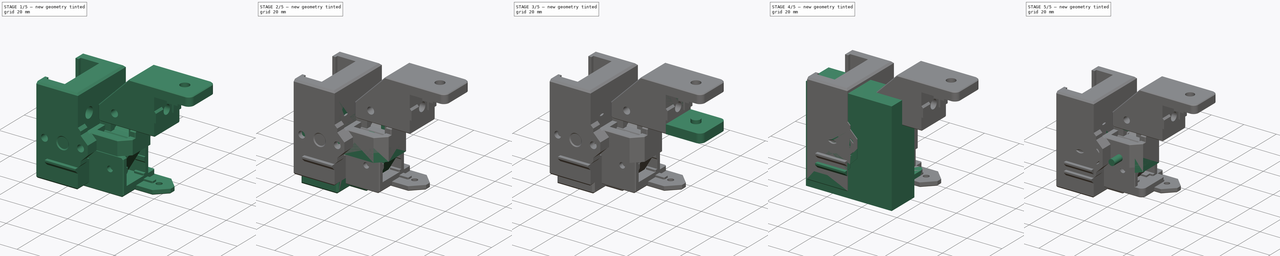
[diagram: build sequence overview — one tinted view per stage of 5, left to right]
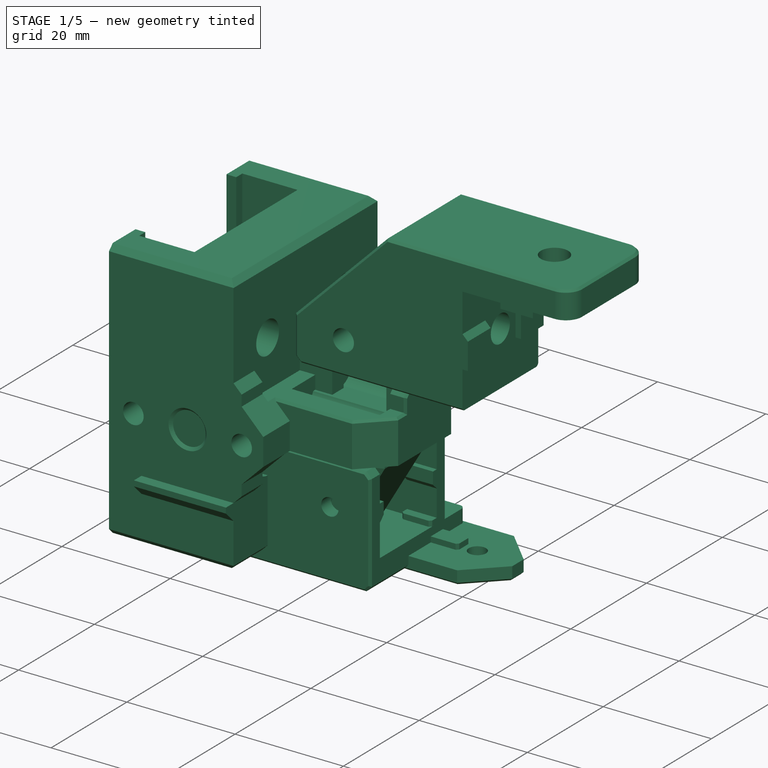
[diagram: stage 1 of 5 — iso view after this stage's code; geometry added in this stage tinted green]
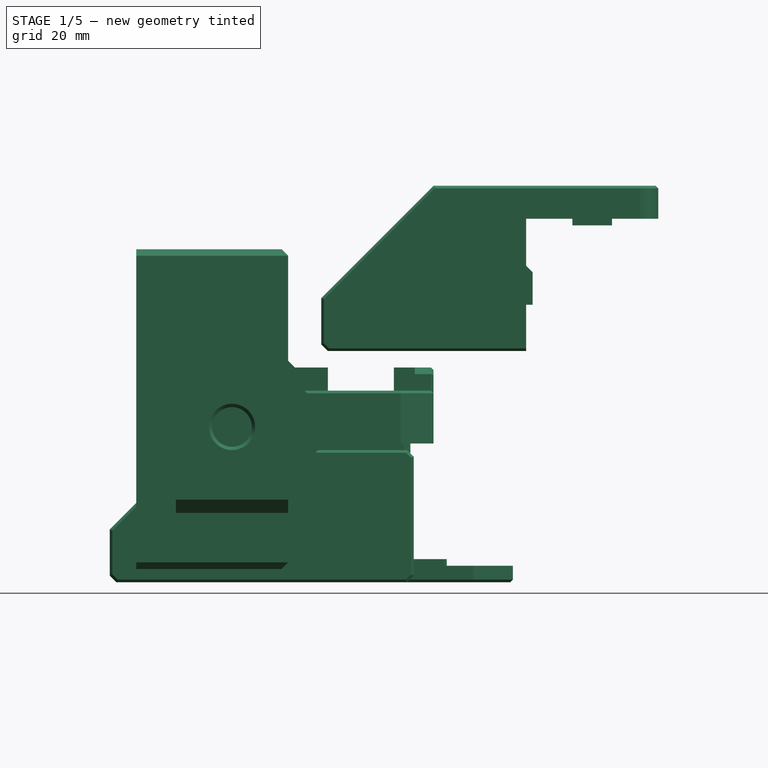
[diagram: stage 1 of 5 — front view after this stage's code; geometry added in this stage tinted green]
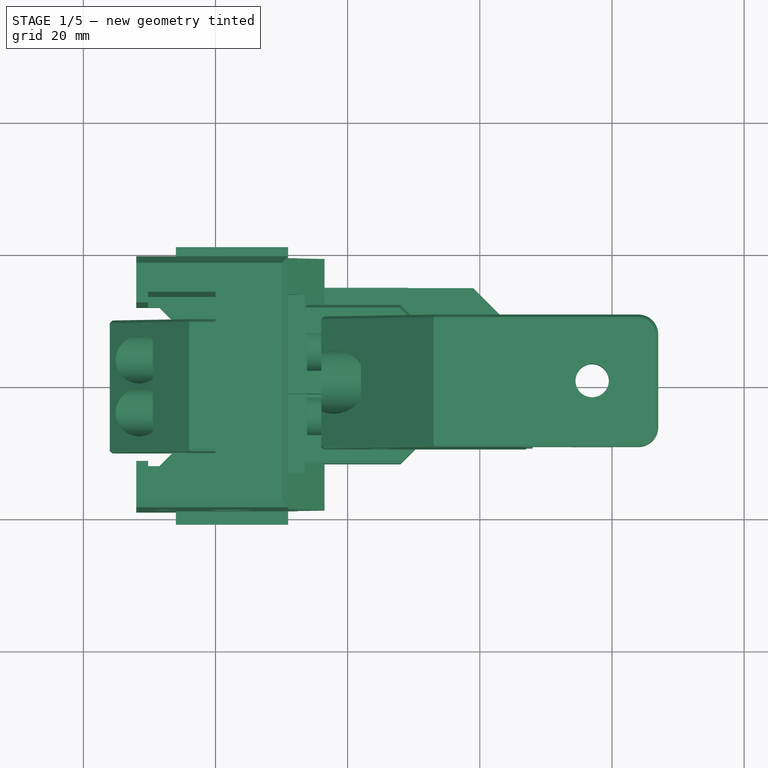
[diagram: stage 1 of 5 — top view after this stage's code; geometry added in this stage tinted green]
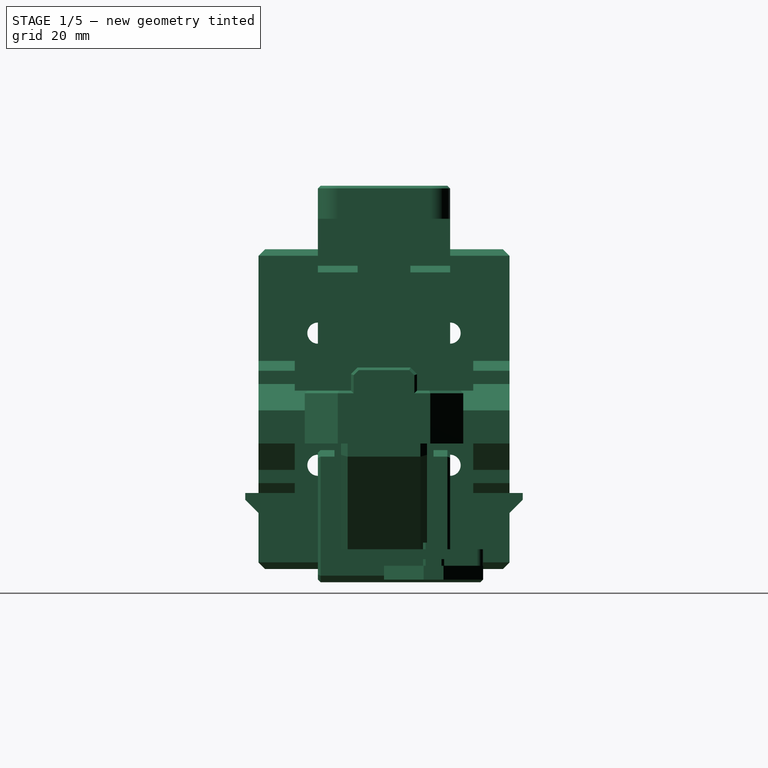
[diagram: stage 1 of 5 — right view after this stage's code; geometry added in this stage tinted green]
FCSTD DOCUMENT  (FreeCAD 0.19R24291 (Git))
Label: z-arm
License: Other
LicenseURL: GPL3
objects: Part::Box×50, Part::Feature×44, Part::Chamfer×43, Part::MultiFuse×42, Part::Cylinder×35, Sketcher::SketchObject×34, Part::Cut×31, PartDesign::Pocket×22, PartDesign::Chamfer×20, PartDesign::Pad×13, PartDesign::Body×5, Part::Fillet×3, Part::Refine×3, Part::Mirroring×2, Spreadsheet::Sheet×1, PartDesign::Fillet×1, PartDesign::FeatureBase×1, Part::MultiCommon×1
note: 406 computed .brp shape members not serialized (recipe doc carries the construction recipe); baked Part::Feature solids carry a one-line shape summary decoded from their .brp

FEATURE [PartDesign::Body] Body002  label="1515-middle-arm"
  Group = -> [Sketch017,Pad005,Sketch018,Pocket010,Chamfer004013007011015006009007001005003035,Sketch019,Pocket011,Sketch020,Pocket012,Sketch021,Pocket013,Chamfer004013007011015006009007001005003036,Sketch022,Pocket014,Sketch023,Pocket015,Sketch024,Pocket016,Sketch025,Pad006,Sketch026,Pad007,Chamfer004013007011015006009007001005003037,Chamfer004013007011015006009007001005003038,Sketch027,Pocket017,Sketch028,+6 more]
  Origin = -> Origin002
  Tip = -> Chamfer004013007011015006009007001005003041
FEATURE [Sketcher::SketchObject] Sketch039
  FullyConstrained = true
  MapMode = 5
  Support = -> [XY_Plane005]
  expr: Constraints[16] = <<params>>.m3_hole
  expr: Constraints[17] = <<params>>.m3_hole
  sketch-geometry (6):
    g0: LineSegment StartX=0 StartY=0 StartZ=0 EndX=30 EndY=0 EndZ=0
    g1: LineSegment StartX=30 StartY=0 StartZ=0 EndX=30 EndY=15 EndZ=0
    g2: LineSegment StartX=30 StartY=15 StartZ=0 EndX=0 EndY=15 EndZ=0
    g3: LineSegment StartX=0 StartY=15 StartZ=0 EndX=0 EndY=0 EndZ=0
    g4: Circle CenterX=7.5 CenterY=7.5 CenterZ=0 NormalX=0 NormalY=0 NormalZ=1 AngleXU=0 Radius=1.6
    g5: Circle CenterX=22.5 CenterY=7.5 CenterZ=0 NormalX=0 NormalY=0 NormalZ=1 AngleXU=0 Radius=1.6
  constraints (18):
    c: Coincident(g0,g1)
    c: Coincident(g1,g2)
    c: Coincident(g2,g3)
    c: Coincident(g3,g0)
    c: Horizontal(g0)
    c: Horizontal(g2)
    c: Vertical(g1)
    c: Vertical(g3)
    c: PointOnObject(g0,g-1)
    c: DistanceX(g2,g2) = 30
    c: DistanceY(g3,g3) = 15
    c: DistanceX(g-1,g0) = 0
    c: DistanceY(g4,g5) = 0
    c: DistanceY(g0,g4) = 7.5
    c: DistanceX(g0,g4) = 7.5
    c: DistanceX(g4,g5) = 15
    c: Radius(g4) = 1.6
    c: Radius(g5) = 1.6
FEATURE [PartDesign::Pad] Pad008
  Direction = (1,1,1)
  Length = 5
  Length2 = 100
  Profile = -> Sketch039
  Type = 0
FEATURE [Sketcher::SketchObject] Sketch040
  FullyConstrained = true
  MapMode = 5
  Placement = pos=(0,0,5) rot=(0,0,1;0rad)
  Support = -> [Pad008]
  expr: Constraints[16] = <<params>>.profile_slot
  expr: Constraints[17] = <<params>>.profile_slot
  expr: Constraints[41] = <<params>>.profile_slot
  expr: Constraints[23] = 7.5 - <<params>>.profile_slot / 2
  expr: Constraints[40] = <<params>>.profile_slot
  expr: Constraints[42] = 7.5 - <<params>>.profile_slot / 2
  sketch-geometry (16):
    g0: LineSegment StartX=16 StartY=9.1 StartZ=0 EndX=20.5 EndY=9.1 EndZ=0
    g1: LineSegment StartX=20.5 StartY=9.1 StartZ=0 EndX=20.5 EndY=5.9 EndZ=0
    g2: LineSegment StartX=20.5 StartY=5.9 StartZ=0 EndX=16 EndY=5.9 EndZ=0
    g3: LineSegment StartX=16 StartY=5.9 StartZ=0 EndX=16 EndY=9.1 EndZ=0
    g4: LineSegment StartX=24.5 StartY=9.1 StartZ=0 EndX=30 EndY=9.1 EndZ=0
    g5: LineSegment StartX=30 StartY=9.1 StartZ=0 EndX=30 EndY=5.9 EndZ=0
    g6: LineSegment StartX=30 StartY=5.9 StartZ=0 EndX=24.5 EndY=5.9 EndZ=0
    g7: LineSegment StartX=24.5 StartY=5.9 StartZ=0 EndX=24.5 EndY=9.1 EndZ=0
    g8: LineSegment StartX=5.9 StartY=15 StartZ=0 EndX=9.1 EndY=15 EndZ=0
    g9: LineSegment StartX=9.1 StartY=15 StartZ=0 EndX=9.1 EndY=9.5 EndZ=0
    g10: LineSegment StartX=9.1 StartY=9.5 StartZ=0 EndX=5.9 EndY=9.5 EndZ=0
    g11: LineSegment StartX=5.9 StartY=9.5 StartZ=0 EndX=5.9 EndY=15 EndZ=0
    g12: LineSegment StartX=5.9 StartY=5.5 StartZ=0 EndX=9.1 EndY=5.5 EndZ=0
    g13: LineSegment StartX=9.1 StartY=5.5 StartZ=0 EndX=9.1 EndY=0 EndZ=0
    g14: LineSegment StartX=9.1 StartY=0 StartZ=0 EndX=5.9 EndY=0 EndZ=0
    g15: LineSegment StartX=5.9 StartY=0 StartZ=0 EndX=5.9 EndY=5.5 EndZ=0
  constraints (48):
    c: Coincident(g0,g1)
    c: Coincident(g1,g2)
    c: Coincident(g2,g3)
    c: Coincident(g3,g0)
    c: Horizontal(g0)
    c: Horizontal(g2)
    c: Vertical(g1)
    c: Vertical(g3)
    c: Coincident(g4,g5)
    c: Coincident(g5,g6)
    c: Coincident(g6,g7)
    c: Coincident(g7,g4)
    c: Horizontal(g4)
    c: Horizontal(g6)
    c: Vertical(g5)
    c: Vertical(g7)
    c: DistanceY(g3,g3) = 3.2
    c: DistanceY(g7,g7) = 3.2
    c: DistanceX(g0,g4) = 4
    c: DistanceX(g4,g4) = 5.5
    c: DistanceX(g0,g0) = 4.5
    c: DistanceY(g6,g1) = 0
    c: DistanceX(g-1,g2) = 16
    c: DistanceY(g-1,g2) = 5.9
    c: Coincident(g8,g9)
    c: Coincident(g9,g10)
    c: Coincident(g10,g11)
    c: Coincident(g11,g8)
    c: Horizontal(g8)
    c: Horizontal(g10)
    c: Vertical(g9)
    c: Vertical(g11)
    c: Coincident(g12,g13)
    c: Coincident(g13,g14)
    c: Coincident(g14,g15)
    c: Coincident(g15,g12)
    c: Horizontal(g12)
    c: Horizontal(g14)
    c: Vertical(g13)
    c: Vertical(g15)
    c: DistanceX(g10,g10) = 3.2
    c: DistanceX(g12,g12) = 3.2
    c: DistanceX(g-1,g14) = 5.9
    c: DistanceY(g-1,g14) = 0
    c: DistanceY(g12,g10) = 4
    c: DistanceY(g15,g15) = 5.5
    c: DistanceX(g10,g12) = 0
    c: DistanceY(g9,g9) = 5.5
FEATURE [PartDesign::Pad] Pad009
  BaseFeature = -> Pad008
  Direction = (1,1,1)
  Length = 1
  Length2 = 100
  Profile = -> Sketch040
  Type = 0
FEATURE [PartDesign::Pad] Pad010
  BaseFeature = -> Pad009
  Direction = (1,1,1)
  Length = 1
  Length2 = 100
  Profile = -> Sketch040
  Type = 0
FEATURE [PartDesign::Fillet] Fillet002
  Base = -> Pad010 [Edge2,Edge10,Edge7,Edge1]
  BaseFeature = -> Pad010
  Radius = 1
  SupportTransform = false
FEATURE [PartDesign::Chamfer] Chamfer004013007011015006009007001005003045
  Angle = 45
  Base = -> Fillet002 [Edge66,Edge65,Edge77,Edge73,Edge72,Edge62,Edge54,Edge60,Edge56,Edge53,Edge43,Edge58,Edge42,Edge75,Edge69,Edge68]
  BaseFeature = -> Fillet002
  ChamferType = 0
  FlipDirection = false
  Size = 0.4
  Size2 = 1
  SupportTransform = false
FEATURE [PartDesign::Chamfer] Chamfer004013007011015006009007001005003046
  Angle = 45
  Base = -> Chamfer004013007011015006009007001005003045 [Face45]
  BaseFeature = -> Chamfer004013007011015006009007001005003045
  ChamferType = 0
  FlipDirection = false
  Size = 0.4
  Size2 = 1
  SupportTransform = false
FEATURE [PartDesign::Body] Body005  label="1515-bottom-corner"
  Group = -> [Sketch039,Pad008,Sketch040,Pad009,Pad010,Fillet002,Chamfer004013007011015006009007001005003045,Chamfer004013007011015006009007001005003046]
  Origin = -> Origin005
  Tip = -> Chamfer004013007011015006009007001005003046
FEATURE [Sketcher::SketchObject] Sketch041
  FullyConstrained = true
  MapMode = 5
  Support = -> [XY_Plane006]
  expr: Constraints[11] = <<params>>.m3_hole
  expr: Constraints[12] = <<params>>.m3_hole
  sketch-geometry (6):
    g0: LineSegment StartX=0 StartY=0 StartZ=0 EndX=45 EndY=0 EndZ=0
    g1: LineSegment StartX=45 StartY=0 StartZ=0 EndX=45 EndY=15 EndZ=0
    g2: LineSegment StartX=45 StartY=15 StartZ=0 EndX=0 EndY=15 EndZ=0
    g3: LineSegment StartX=0 StartY=15 StartZ=0 EndX=0 EndY=0 EndZ=0
    g4: Circle CenterX=7.5 CenterY=7.5 CenterZ=0 NormalX=0 NormalY=0 NormalZ=1 AngleXU=0 Radius=1.6
    g5: Circle CenterX=37.5 CenterY=7.5 CenterZ=0 NormalX=0 NormalY=0 NormalZ=1 AngleXU=0 Radius=1.6
  constraints (17):
    c: Coincident(g0,g1)
    c: Coincident(g1,g2)
    c: Coincident(g2,g3)
    c: Coincident(g3,g0)
    c: Horizontal(g0)
    c: Horizontal(g2)
    c: Vertical(g1)
    c: Vertical(g3)
    c: Coincident(g0,g-1)
    c: DistanceY(g3,g3) = 15
    c: DistanceX(g2,g2) = 45
    c: Radius(g4) = 1.6
    c: Radius(g5) = 1.6
    c: DistanceY(g4,g5) = 0
    c: DistanceY(g0,g4) = 7.5
    c: DistanceX(g0,g4) = 7.5
    c: DistanceX(g4,g5) = 30
FEATURE [PartDesign::Pad] Pad011
  Direction = (1,1,1)
  Length = 2.5
  Length2 = 100
  Profile = -> Sketch041
  Type = 0
FEATURE [PartDesign::Chamfer] Chamfer004013007011015006009007001005003047
  Angle = 45
  Base = -> Pad011 [Edge2,Edge5]
  BaseFeature = -> Pad011
  ChamferType = 0
  FlipDirection = false
  Size = 6
  Size2 = 1
  SupportTransform = false
FEATURE [PartDesign::Chamfer] Chamfer004013007011015006009007001005003048
  Angle = 45
  Base = -> Chamfer004013007011015006009007001005003047 [Edge14,Edge3]
  BaseFeature = -> Chamfer004013007011015006009007001005003047
  ChamferType = 0
  FlipDirection = false
  Size = 0.4
  Size2 = 1
  SupportTransform = false
FEATURE [Sketcher::SketchObject] Sketch042
  FullyConstrained = true
  MapMode = 5
  Placement = pos=(0,0,2.5) rot=(0,0,1;0rad)
  Support = -> [Chamfer004013007011015006009007001005003048]
  expr: Constraints[8] = <<params>>.profile_slot
  expr: Constraints[9] = 7.5 - <<params>>.profile_slot / 2
  sketch-geometry (4):
    g0: LineSegment StartX=16 StartY=9.1 StartZ=0 EndX=35 EndY=9.1 EndZ=0
    g1: LineSegment StartX=35 StartY=9.1 StartZ=0 EndX=35 EndY=5.9 EndZ=0
    g2: LineSegment StartX=35 StartY=5.9 StartZ=0 EndX=16 EndY=5.9 EndZ=0
    g3: LineSegment StartX=16 StartY=5.9 StartZ=0 EndX=16 EndY=9.1 EndZ=0
  constraints (12):
    c: Coincident(g0,g1)
    c: Coincident(g1,g2)
    c: Coincident(g2,g3)
    c: Coincident(g3,g0)
    c: Horizontal(g0)
    c: Horizontal(g2)
    c: Vertical(g1)
    c: Vertical(g3)
    c: DistanceY(g3,g3) = 3.2
    c: DistanceY(g-1,g2) = 5.9
    c: DistanceX(g0,g0) = 19
    c: DistanceX(g-1,g2) = 16
FEATURE [PartDesign::Pad] Pad012
  BaseFeature = -> Chamfer004013007011015006009007001005003048
  Direction = (1,1,1)
  Length = 1
  Length2 = 100
  Profile = -> Sketch042
  Type = 0
FEATURE [PartDesign::Chamfer] Chamfer004013007011015006009007001005003049
  Angle = 45
  Base = -> Pad012 [Edge38,Edge40,Edge36,Edge35]
  BaseFeature = -> Pad012
  ChamferType = 0
  FlipDirection = false
  Size = 0.4
  Size2 = 1
  SupportTransform = false
FEATURE [PartDesign::Chamfer] Chamfer004013007011015006009007001005003050
  Angle = 45
  Base = -> Chamfer004013007011015006009007001005003049 [Face21]
  BaseFeature = -> Chamfer004013007011015006009007001005003049
  ChamferType = 0
  FlipDirection = false
  Size = 0.4
  Size2 = 1
  SupportTransform = false
FEATURE [PartDesign::Body] Body005002  label="1515-label"
  Group = -> [Sketch041,Pad011,Chamfer004013007011015006009007001005003047,Chamfer004013007011015006009007001005003048,Sketch042,Pad012,Chamfer004013007011015006009007001005003049,Chamfer004013007011015006009007001005003050]
  Origin = -> Origin006
  Tip = -> Chamfer004013007011015006009007001005003050
FEATURE [Part::Feature] snakeoil_logo_14_001001_solid  label="snakeoil_logo_14_001001 (Solid)"
  Placement = pos=(24,86,11) rot=(1,0,0;3.14159rad)
  shape: bbox 22 x 12 x 4 mm, 637 faces (baked)
FEATURE [Part::Cut] Cut028006004005011004003001010002002002
  Base = -> Chamfer004013007011015006009007001005003050
  Tool = -> snakeoil_logo_14_001001_solid
FEATURE [Part::Cylinder] Cylinder027
  Angle = 360
  AttacherType = Attacher::AttachEngine3D
  Height = 4.5
  Placement = pos=(22,0,35) rot=(0,0,1;0rad)
  Radius = 2.65
FEATURE [Part::Box] Box049  label="Cube049"
  AttacherType = Attacher::AttachEngine3D
  Height = 5.9
  Length = 2
  Placement = pos=(46,-10,47) rot=(0,0,1;0rad)
  Width = 6
FEATURE [Part::Cylinder] Cylinder029
  Angle = 360
  AttacherType = Attacher::AttachEngine3D
  Height = 10
  Placement = pos=(24,14,41) rot=(1,0,0;1.5708rad)
  Radius = 1.95
FEATURE [Part::Cylinder] Cylinder030
  Angle = 360
  AttacherType = Attacher::AttachEngine3D
  Height = 37
  Placement = pos=(14,0,45) rot=(0,1,0;1.5708rad)
  Radius = 2.525
FEATURE [Part::Box] Box050  label="Cube050"
  AttacherType = Attacher::AttachEngine3D
  Height = 25
  Length = 31
  Placement = pos=(16,-10,35) rot=(0,0,1;0rad)
  Width = 20
FEATURE [Part::Chamfer] Chamfer004013007011015006009007001005003057
  Base = -> Box050
  Edges = 1 edges r=17: [Edge2]
FEATURE [Part::Chamfer] Chamfer004013007011015006009007001005003058
  Base = -> Chamfer004013007011015006009007001005003057
  Edges = 1 edges r=1: [Edge2]
FEATURE [Part::Cylinder] Cylinder031
  Angle = 360
  AttacherType = Attacher::AttachEngine3D
  Height = 8
  Placement = pos=(14,0,45) rot=(0,1,0;1.5708rad)
  Radius = 4.75
FEATURE [Part::MultiFuse] Fusion004025023015009
  Shapes = -> [Cylinder031,Cylinder030]
FEATURE [Part::Cut] Cut028006004005011004003001010002002006
  Base = -> Chamfer004013007011015006009007001005003058
  Tool = -> Fusion004025023015009
FEATURE [Part::Chamfer] Chamfer004013007011015006009007001005003061
  Base = -> Cut028006004005011004003001010002002006
  Edges = 10 edges r=0.4: [Edge1,Edge6,Edge8,Edge9,Edge10,Edge11,Edge14,Edge21,Edge22,Edge23]
FEATURE [Part::Box] Box052  label="Cube052"
  AttacherType = Attacher::AttachEngine3D
  Height = 5.9
  Length = 2
  Placement = pos=(46,4,47) rot=(0,0,1;0rad)
  Width = 6
FEATURE [Part::MultiFuse] Fusion004025023015006
  Placement = pos=(0,0,-5.1) rot=(0,0,1;0rad)
  Shapes = -> [Box052,Box049]
FEATURE [Part::Chamfer] Chamfer004013007011015006009007001005003059
  Base = -> Fusion004025023015006
  Edges = 2 edges r=1: [Edge6,Edge18]
  Placement = pos=(0,0,0.1) rot=(0,0,1;0rad)
FEATURE [Part::Box] Box053  label="Cube053"
  AttacherType = Attacher::AttachEngine3D
  Height = 5
  Length = 20
  Placement = pos=(47,-10,35) rot=(0,0,1;0rad)
  Width = 20
FEATURE [Part::Cylinder] Cylinder032
  Angle = 360
  AttacherType = Attacher::AttachEngine3D
  Height = 10
  Placement = pos=(57,0,32) rot=(0,0,1;0rad)
  Radius = 2.525
FEATURE [Part::Box] Box054  label="Cube054"
  AttacherType = Attacher::AttachEngine3D
  Height = 1
  Length = 6
  Placement = pos=(54,3,40) rot=(0,0,1;0rad)
  Width = 7
FEATURE [Part::Fillet] Fillet003
  Base = -> Box053
  Edges = 2 edges r=3: [Edge5,Edge7]
FEATURE [Part::Cut] Cut028006004005011004003001010002002008
  Base = -> Fillet003
  Placement = pos=(0,0,6) rot=(0,0,1;0rad)
  Tool = -> Cylinder032
FEATURE [Part::Box] Box055  label="Cube055"
  AttacherType = Attacher::AttachEngine3D
  Height = 1
  Length = 6
  Placement = pos=(54,-10,40) rot=(0,0,1;0rad)
  Width = 7
FEATURE [Part::MultiFuse] Fusion004025023015008
  Placement = pos=(0,0,14) rot=(0,0,1;0rad)
  Shapes = -> [Cut028006004005011004003001010002002008,Box055,Box054]
FEATURE [Part::Chamfer] Chamfer004013007011015006009007001005003060
  Base = -> Fusion004025023015008
  Edges = 5 edges r=0.4: [Edge1,Edge5,Edge6,Edge8,Edge9]
FEATURE [Part::Cylinder] Cylinder033
  Angle = 360
  AttacherType = Attacher::AttachEngine3D
  Height = 10
  Placement = pos=(24,-4,41) rot=(1,0,0;1.5708rad)
  Radius = 1.95
FEATURE [Part::MultiFuse] Fusion004025023015010
  Placement = pos=(1,0,0) rot=(0,0,1;0rad)
  Shapes = -> [Cylinder033,Cylinder029]
FEATURE [Part::Cut] Cut028006004005011004003001010002002005
  Base = -> Chamfer004013007011015006009007001005003061
  Tool = -> Fusion004025023015010
FEATURE [Part::MultiFuse] Fusion004025023015007
  Shapes = -> [Chamfer004013007011015006009007001005003059,Chamfer004013007011015006009007001005003060,Cut028006004005011004003001010002002005]
FEATURE [Part::Feature] Cut028006004005011004003001010002002004001  label="magnet-slot003"
  Placement = pos=(22,0,33) rot=(0,0,1;0rad)
  shape: bbox 10.1 x 10.1 x 5 mm, 5 faces (baked)
FEATURE [Part::Feature] Chamfer004013007011015006009007001005003063003001001  label="1515-corner-arm-front-threaded-ball"
  shape: bbox 46 x 20 x 20 mm, 99 faces (baked)
FEATURE [Part::Feature] Chamfer004013007011015006009007001005003063003001002001001  label="1515-corner-arm-back-threaded-ball"
  shape: bbox 46 x 20 x 20 mm, 111 faces (baked)
FEATURE [Part::Feature] Chamfer004013007011015006009007001005003063003001002001002001001  label="1515-corner-arm-middle-threaded-ball"
  shape: bbox 31 x 20 x 20 mm, 68 faces (baked)
FEATURE [Part::Cut] Cut028006004005011004003001010002002004002
  Base = -> Fusion004025023015007
  Tool = -> Cylinder027
FEATURE [Part::Cylinder] Cylinder034
  Angle = 360
  AttacherType = Attacher::AttachEngine3D
  Height = 6
  Placement = pos=(-10,0,0) rot=(0,0,1;0rad)
  Radius = 2.65
FEATURE [Part::Cylinder] Cylinder035
  Angle = 360
  AttacherType = Attacher::AttachEngine3D
  Height = 6
  Placement = pos=(-10,0,0) rot=(0,0,1;0rad)
  Radius = 2.65
FEATURE [Part::Cylinder] Cylinder036
  Angle = 360
  AttacherType = Attacher::AttachEngine3D
  Height = 6
  Placement = pos=(-10,0,0) rot=(0,0,1;0rad)
  Radius = 2.65
FEATURE [Part::Cut] Cut028006004005011004003001010002002004003
  Base = -> Chamfer004013007011015006009007001005003063003001001
  Tool = -> Cylinder036
FEATURE [Part::Chamfer] Chamfer004013007011015006009007001005003063003001002001002001003  label="bed-mount-front-1515"
  Base = -> Cut028006004005011004003001010002002004003
  Edges = 1 edges r=0.4: [Edge102]
FEATURE [Part::Cut] Cut028006004005011004003001010002002004004
  Base = -> Chamfer004013007011015006009007001005003063003001002001002001001
  Tool = -> Cylinder034
FEATURE [Part::Chamfer] Chamfer004013007011015006009007001005003063003001002001002001004  label="med-mound-mid-1515"
  Base = -> Cut028006004005011004003001010002002004004
  Edges = 1 edges r=0.4: [Edge27]
FEATURE [Part::Cut] Cut028006004005011004003001010002002004005
  Base = -> Chamfer004013007011015006009007001005003063003001002001001
  Tool = -> Cylinder035
FEATURE [Part::Chamfer] Chamfer004013007011015006009007001005003063003001002001002001005  label="bed-mount-back-1515"
  Base = -> Cut028006004005011004003001010002002004005
  Edges = 1 edges r=0.4: [Edge41]
FEATURE [Part::Refine] Cut028006004005011004003001010002002002001
  Source = -> Cut028006004005011004003001010002002002
FEATURE [Part::Refine] Chamfer004013007011015006009007001005003046001
  Source = -> Chamfer004013007011015006009007001005003046
FEATURE [Part::Feature] Cut028006004005011004003001010002002002001001
  shape: bbox 45 x 15 x 3.5 mm, 345 faces (baked)
FEATURE [Part::Feature] Chamfer004013007011015006009007001005003046001001
  shape: bbox 30 x 15 x 6 mm, 55 faces (baked)
FEATURE [Part::Feature] Fusion004025023015004001  label="x-slider-r1-f4-limit001"
  Placement = pos=(0,0,5) rot=(0,0,1;0rad)
  shape: bbox 45 x 37.5 x 48.4 mm, 137 faces (baked)
FEATURE [Part::Box] Box056  label="Cube056"
  AttacherType = Attacher::AttachEngine3D
  Height = 80
  Length = 61
  Placement = pos=(-19,0,0) rot=(0,0,1;0rad)
  Width = 24
FEATURE [Part::MultiCommon] Common
  Shapes = -> [Box056,Fusion004025023015004001]
FEATURE [Part::Feature] Common001
  shape: bbox 45 x 21 x 48.4 mm, 95 faces (baked)
FEATURE [Part::Mirroring] Part__Mirroring001002002  label="Common001 (Mirror #2)"
  Base = (0,0,0)
  Normal = (0,1,0)
  Source = -> Common001
FEATURE [Part::Feature] Common002
  shape: bbox 45 x 21 x 48.4 mm, 95 faces (baked)
FEATURE [Part::Feature] Part__Mirroring001002002001  label="Common001 (Mirror #2)001"
  shape: bbox 45 x 21 x 48.4 mm, 95 faces (baked)
FEATURE [Part::MultiFuse] Fusion004025023015004002
  Shapes = -> [Part__Mirroring001002002001,Common002]
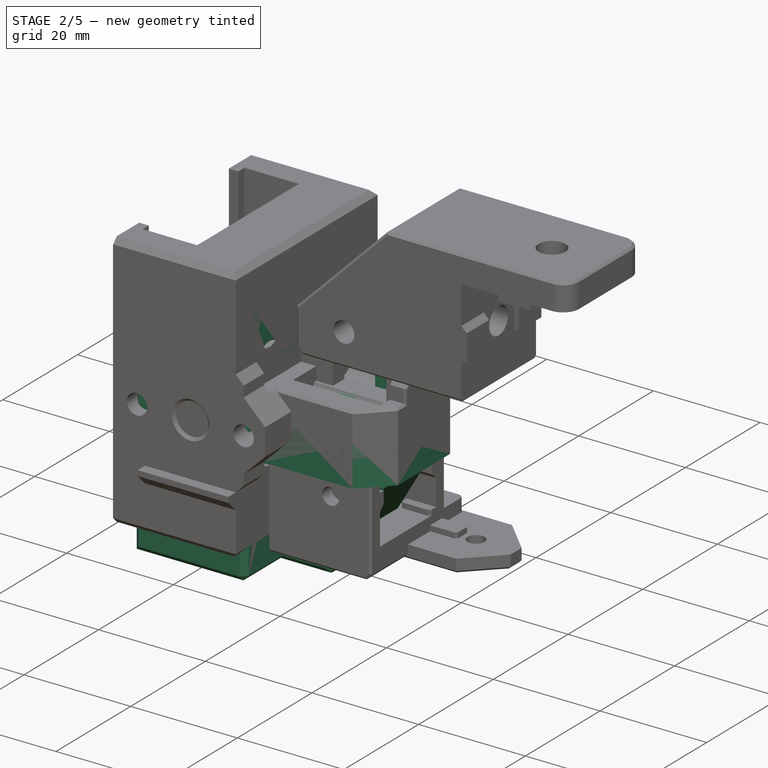
[diagram: stage 2 of 5 — iso view after this stage's code; geometry added in this stage tinted green]
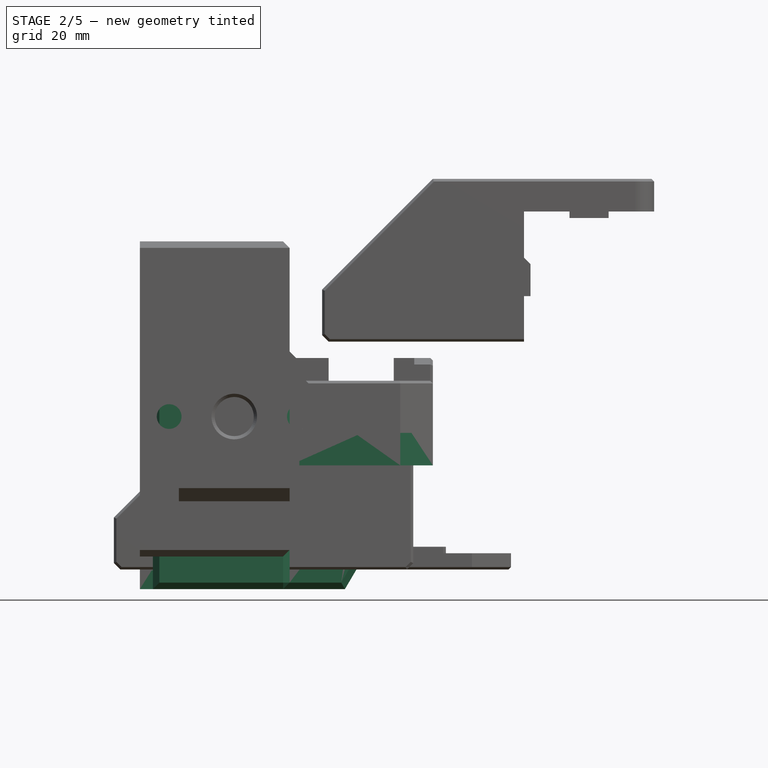
[diagram: stage 2 of 5 — front view after this stage's code; geometry added in this stage tinted green]
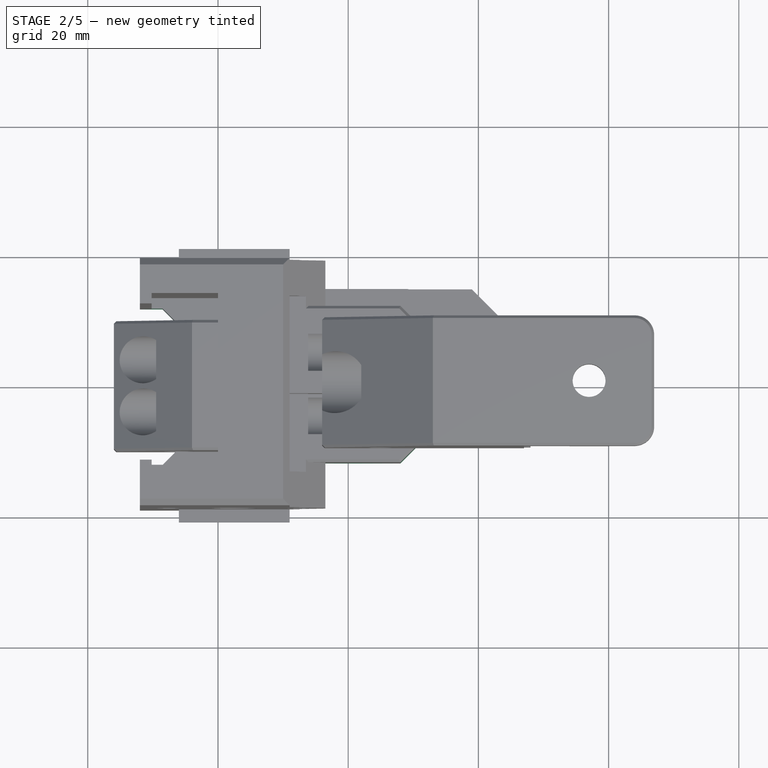
[diagram: stage 2 of 5 — top view after this stage's code; geometry added in this stage tinted green]
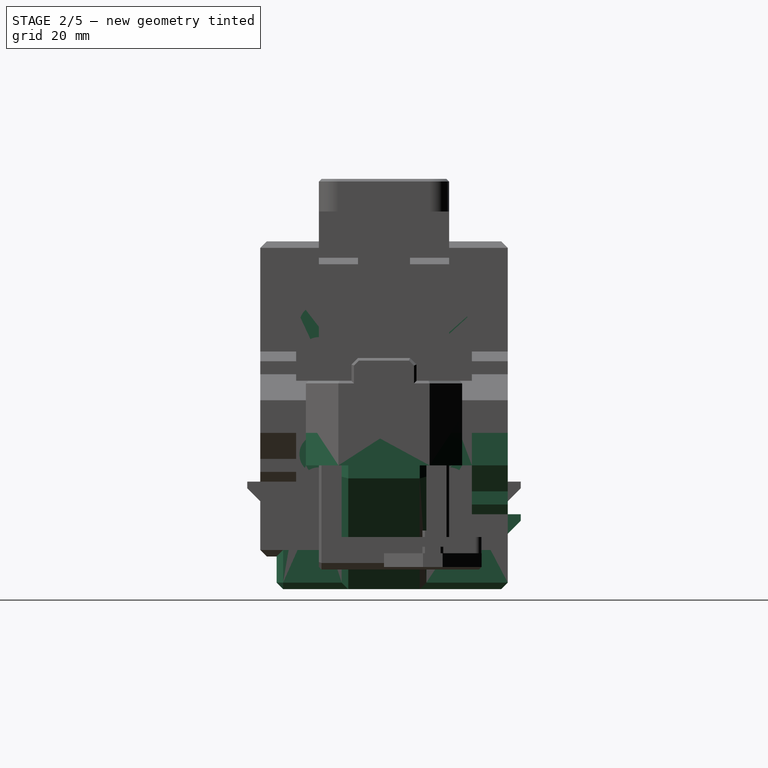
[diagram: stage 2 of 5 — right view after this stage's code; geometry added in this stage tinted green]
FEATURE [Part::Box] Box033  label="Cube033"
  AttacherType = Attacher::AttachEngine3D
  Height = 8
  Length = 5.5
  Placement = pos=(11,10.5,16) rot=(0,0,1;0rad)
  Width = 3
FEATURE [Part::Box] Box045  label="Cube045"
  AttacherType = Attacher::AttachEngine3D
  Height = 6
  Length = 3
  Placement = pos=(20.5,4.75,21.5) rot=(0,0,1;0rad)
  Width = 4.25
FEATURE [Part::Feature] Fusion004025023015001  label="y-slider-r1-f004"
  shape: bbox 45 x 37.5 x 48.4 mm, 139 faces (baked)
FEATURE [Part::Feature] Fusion004025023013001  label="x-slider-r1-f004"
  shape: bbox 45 x 37.5 x 48.4 mm, 123 faces (baked)
FEATURE [Part::Box] Box046  label="Cube046"
  AttacherType = Attacher::AttachEngine3D
  Height = 6
  Length = 4
  Placement = pos=(27,-1.5,21.5) rot=(0,0,1;0rad)
  Width = 3
FEATURE [Part::Box] Box047  label="Cube047"
  AttacherType = Attacher::AttachEngine3D
  Height = 6
  Length = 3
  Placement = pos=(20.5,-9,21.5) rot=(0,0,1;0rad)
  Width = 4.25
FEATURE [Part::Box] Box048  label="Cube048"
  AttacherType = Attacher::AttachEngine3D
  Height = 6
  Length = 7
  Placement = pos=(10,-1.5,21.5) rot=(0,0,1;0rad)
  Width = 3
FEATURE [Part::Feature] Cut028006004005011004003001010002002001  label="bed-mount-bottom001"
  Placement = pos=(-32,0,-35) rot=(0,0,1;0rad)
  shape: bbox 51 x 20 x 25 mm, 70 faces (baked)
FEATURE [Sketcher::SketchObject] Sketch
  FullyConstrained = true
  MapMode = 5
  Support = -> [XY_Plane]
  sketch-geometry (4):
    g0: LineSegment StartX=-16 StartY=10 StartZ=0 EndX=30 EndY=10 EndZ=0
    g1: LineSegment StartX=30 StartY=10 StartZ=0 EndX=30 EndY=-10 EndZ=0
    g2: LineSegment StartX=30 StartY=-10 StartZ=0 EndX=-16 EndY=-10 EndZ=0
    g3: LineSegment StartX=-16 StartY=-10 StartZ=0 EndX=-16 EndY=10 EndZ=0
  constraints (12):
    c: Coincident(g0,g1)
    c: Coincident(g1,g2)
    c: Coincident(g2,g3)
    c: Coincident(g3,g0)
    c: Horizontal(g0)
    c: Horizontal(g2)
    c: Vertical(g1)
    c: Vertical(g3)
    c: DistanceY(g3,g3) = 20
    c: DistanceY(g2,g-1) = 10
    c: DistanceX(g0,g-1) = 16
    c: DistanceX(g0,g0) = 46
FEATURE [PartDesign::Pad] Pad
  Direction = (1,1,1)
  Length = 5
  Length2 = 100
  Profile = -> Sketch
  Type = 0
FEATURE [Sketcher::SketchObject] Sketch002
  FullyConstrained = true
  MapMode = 5
  Placement = pos=(0,0,5) rot=(0,0,1;0rad)
  Support = -> [Pad]
  sketch-geometry (6):
    g0: LineSegment StartX=-16 StartY=10 StartZ=0 EndX=0 EndY=10 EndZ=0
    g1: LineSegment StartX=0 StartY=10 StartZ=0 EndX=0 EndY=-7.5 EndZ=0
    g2: LineSegment StartX=0 StartY=-7.5 StartZ=0 EndX=30 EndY=-7.5 EndZ=0
    g3: LineSegment StartX=30 StartY=-7.5 StartZ=0 EndX=30 EndY=-10 EndZ=0
    g4: LineSegment StartX=30 StartY=-10 StartZ=0 EndX=-16 EndY=-10 EndZ=0
    g5: LineSegment StartX=-16 StartY=-10 StartZ=0 EndX=-16 EndY=10 EndZ=0
  constraints (18):
    c: Horizontal(g0)
    c: Coincident(g0,g1)
    c: PointOnObject(g1,g-2)
    c: Vertical(g1)
    c: Coincident(g1,g2)
    c: Horizontal(g2)
    c: Coincident(g2,g3)
    c: Vertical(g3)
    c: Coincident(g3,g4)
    c: Horizontal(g4)
    c: Coincident(g4,g5)
    c: Coincident(g5,g0)
    c: Vertical(g5)
    c: DistanceX(g0,g0) = 16
    c: DistanceX(g2,g2) = 30
    c: DistanceY(g5,g5) = 20
    c: DistanceY(g1,g1) = 17.5
    c: DistanceY(g4,g-1) = 10
FEATURE [PartDesign::Pad] Pad001
  BaseFeature = -> Pad
  Direction = (1,1,1)
  Length = 15
  Length2 = 100
  Profile = -> Sketch002
  Type = 0
FEATURE [Spreadsheet::Sheet] Spreadsheet  label="params"
  cells = A1=m3 hole; B1(m3_hole)=1.6; A2=m3 head; B2(m3_head)=3.2; A3=magnet outer; B3(magnet_outer)=5; A4=magnet inner; B4(magnet_inner)=3; A5=magnet height; B5(magnet_height)=5; A6=magnet clearance; B6(magnet_clearance)=0.05; A7=magnet offset; B7(magnet_offset)=10; A8=magnet stickout; B8(magnet_stickout)=2; A9=m3 washer; B9(m3_washer)=3.6; A10=m3 insert; B10(m3_insert)=1.9; A11=profile slot; B11(profile_slot)=3.2; A12=hook offset x; B12(hook_offset_x)=6; A13=hook offse h; B13(hook_offset_h)=7.5
FEATURE [Sketcher::SketchObject] Sketch004
  FullyConstrained = true
  MapMode = 5
  Placement = pos=(0,-10,0) rot=(1,0,0;1.5708rad)
  Support = -> [Pad001]
  expr: Constraints[1] = <<params>>.m3_hole
  expr: Constraints[0] = <<params>>.m3_hole
  sketch-geometry (2):
    g0: Circle CenterX=7.5 CenterY=12.5 CenterZ=0 NormalX=0 NormalY=0 NormalZ=1 AngleXU=0 Radius=1.6
    g1: Circle CenterX=22.5 CenterY=12.5 CenterZ=0 NormalX=0 NormalY=0 NormalZ=1 AngleXU=0 Radius=1.6
  constraints (6):
    c: Radius(g1) = 1.6
    c: Radius(g0) = 1.6
    c: DistanceY(g-1,g0) = 12.5
    c: DistanceY(g0,g1) = 0
    c: DistanceX(g-1,g0) = 7.5
    c: DistanceX(g0,g1) = 15
FEATURE [PartDesign::Pocket] Pocket
  BaseFeature = -> Pad001
  Length = 5
  Length2 = 100
  Profile = -> Sketch004
  Type = 1
FEATURE [Sketcher::SketchObject] Sketch005
  FullyConstrained = true
  MapMode = 5
  Placement = pos=(0,0,0) rot=(1,0,0;3.14159rad)
  Support = -> [Pocket]
  expr: Constraints[1] = <<params>>.m3_hole
  expr: Constraints[0] = <<params>>.m3_hole
  sketch-geometry (2):
    g0: Circle CenterX=7.5 CenterY=0 CenterZ=0 NormalX=0 NormalY=0 NormalZ=1 AngleXU=0 Radius=1.6
    g1: Circle CenterX=22.5 CenterY=0 CenterZ=0 NormalX=0 NormalY=0 NormalZ=1 AngleXU=0 Radius=1.6
  constraints (6):
    c: Radius(g0) = 1.6
    c: Radius(g1) = 1.6
    c: DistanceY(g0,g1) = 0
    c: DistanceY(g-1,g0) = 0
    c: DistanceX(g0,g1) = 15
    c: DistanceX(g-1,g0) = 7.5
FEATURE [PartDesign::Pocket] Pocket001
  BaseFeature = -> Pocket
  Length = 5
  Length2 = 100
  Profile = -> Sketch005
  Type = 1
FEATURE [Sketcher::SketchObject] Sketch006
  FullyConstrained = true
  MapMode = 5
  Placement = pos=(0,0,0) rot=(1,0,0;3.14159rad)
  Support = -> [Pocket001]
  expr: Constraints[4] = <<params>>.magnet_outer + <<params>>.magnet_clearance
  expr: Constraints[3] = <<params>>.magnet_inner - <<params>>.magnet_clearance
  expr: Constraints[2] = <<params>>.magnet_offset
  sketch-geometry (2):
    g0: Circle CenterX=-10 CenterY=0 CenterZ=0 NormalX=0 NormalY=0 NormalZ=1 AngleXU=0 Radius=5.05
    g1: Circle CenterX=-10 CenterY=0 CenterZ=0 NormalX=0 NormalY=0 NormalZ=1 AngleXU=0 Radius=2.95
  constraints (5):
    c: Coincident(g1,g0)
    c: DistanceY(g-1,g0) = 0
    c: DistanceX(g0,g-1) = 10
    c: Radius(g1) = 2.95
    c: Radius(g0) = 5.05
FEATURE [PartDesign::Pocket] Pocket002
  BaseFeature = -> Pocket001
  Length = 3
  Length2 = 100
  Profile = -> Sketch006
  Type = 0
  expr: Length = <<params>>.magnet_height - <<params>>.magnet_stickout
FEATURE [Sketcher::SketchObject] Sketch007
  FullyConstrained = true
  MapMode = 5
  Placement = pos=(0,0,0) rot=(1,0,0;3.14159rad)
  Support = -> [Pocket002]
  sketch-geometry (4):
    g0: LineSegment StartX=-16 StartY=3 StartZ=0 EndX=-14 EndY=3 EndZ=0
    g1: LineSegment StartX=-14 StartY=3 StartZ=0 EndX=-14 EndY=-3 EndZ=0
    g2: LineSegment StartX=-14 StartY=-3 StartZ=0 EndX=-16 EndY=-3 EndZ=0
    g3: LineSegment StartX=-16 StartY=-3 StartZ=0 EndX=-16 EndY=3 EndZ=0
  constraints (12):
    c: Coincident(g0,g1)
    c: Coincident(g1,g2)
    c: Coincident(g2,g3)
    c: Coincident(g3,g0)
    c: Horizontal(g0)
    c: Horizontal(g2)
    c: Vertical(g1)
    c: Vertical(g3)
    c: DistanceX(g0,g0) = 2
    c: DistanceX(g0,g-1) = 14
    c: DistanceY(g3,g3) = 6
    c: DistanceY(g-1,g0) = 3
FEATURE [PartDesign::Pocket] Pocket003
  BaseFeature = -> Pocket002
  Length = 3
  Length2 = 100
  Profile = -> Sketch007
  Type = 0
  expr: Length = <<params>>.magnet_height - <<params>>.magnet_stickout
FEATURE [PartDesign::Chamfer] Chamfer004013007011015006009007001005003027
  Angle = 45
  Base = -> Pocket003 [Edge37]
  BaseFeature = -> Pocket003
  ChamferType = 0
  FlipDirection = false
  Size = 12
  Size2 = 1
  SupportTransform = false
FEATURE [Sketcher::SketchObject] Sketch008
  FullyConstrained = true
  MapMode = 5
  Placement = pos=(0,0,0) rot=(0.57735,0.57735,0.57735;2.0944rad)
  Support = -> [Chamfer004013007011015006009007001005003027]
  expr: Constraints[3] = <<params>>.m3_hole
  expr: Constraints[2] = <<params>>.m3_hole
  sketch-geometry (2):
    g0: Circle CenterX=-4 CenterY=12.5 CenterZ=0 NormalX=0 NormalY=0 NormalZ=1 AngleXU=0 Radius=1.6
    g1: Circle CenterX=4 CenterY=12.5 CenterZ=0 NormalX=0 NormalY=0 NormalZ=1 AngleXU=0 Radius=1.6
  constraints (6):
    c: DistanceY(g-1,g0) = 12.5
    c: DistanceY(g0,g1) = 0
    c: Radius(g0) = 1.6
    c: Radius(g1) = 1.6
    c: DistanceX(g0,g1) = 8
    c: DistanceX(g-1,g1) = 4
FEATURE [PartDesign::Pocket] Pocket004
  BaseFeature = -> Chamfer004013007011015006009007001005003027
  Length = 5
  Length2 = 100
  Profile = -> Sketch008
  Type = 1
FEATURE [Sketcher::SketchObject] Sketch009
  FullyConstrained = true
  MapMode = 5
  Placement = pos=(-16,0,0) rot=(0.57735,-0.57735,-0.57735;2.0944rad)
  Support = -> [Pocket004]
  expr: Constraints[1] = <<params>>.m3_washer
  expr: Constraints[0] = <<params>>.m3_washer
  sketch-geometry (2):
    g0: Circle CenterX=-4 CenterY=12.5 CenterZ=0 NormalX=0 NormalY=0 NormalZ=1 AngleXU=0 Radius=3.6
    g1: Circle CenterX=4 CenterY=12.5 CenterZ=0 NormalX=0 NormalY=0 NormalZ=1 AngleXU=0 Radius=3.6
  constraints (6):
    c: Radius(g0) = 3.6
    c: Radius(g1) = 3.6
    c: DistanceX(g0,g1) = 8
    c: DistanceY(g1,g0) = 0
    c: DistanceY(g-1,g1) = 12.5
    c: DistanceX(g0,g-1) = 4
FEATURE [PartDesign::Pocket] Pocket005
  BaseFeature = -> Pocket004
  Length = 6.5
  Length2 = 100
  Profile = -> Sketch009
  Type = 0
  expr: Length = 16 - (14 - 4.5)
FEATURE [Sketcher::SketchObject] Sketch010
  FullyConstrained = true
  MapMode = 5
  Placement = pos=(0,-10,0) rot=(1,0,0;1.5708rad)
  Support = -> [Pocket005]
  expr: Constraints[2] = <<params>>.m3_hole - 0.1
  expr: Constraints[0] = <<params>>.hook_offset_h
  expr: Constraints[1] = <<params>>.hook_offset_x
  sketch-geometry (1):
    g0: Circle CenterX=-6 CenterY=7.5 CenterZ=0 NormalX=0 NormalY=0 NormalZ=1 AngleXU=0 Radius=1.5
  constraints (3):
    c: DistanceY(g-1,g0) = 7.5
    c: DistanceX(g0,g-1) = 6
    c: Radius(g0) = 1.5
FEATURE [PartDesign::Pocket] Pocket006
  BaseFeature = -> Pocket005
  Length = 5
  Length2 = 100
  Profile = -> Sketch010
  Type = 1
FEATURE [Sketcher::SketchObject] Sketch011
  FullyConstrained = true
  MapMode = 5
  Placement = pos=(0,-10,0) rot=(1,0,0;1.5708rad)
  Support = -> [Pocket006]
  expr: Constraints[0] = <<params>>.m3_insert
  expr: Constraints[2] = <<params>>.hook_offset_h
  expr: Constraints[1] = <<params>>.hook_offset_x
  sketch-geometry (1):
    g0: Circle CenterX=-6 CenterY=7.5 CenterZ=0 NormalX=0 NormalY=0 NormalZ=1 AngleXU=0 Radius=1.9
  constraints (3):
    c: Radius(g0) = 1.9
    c: DistanceX(g0,g-1) = 6
    c: DistanceY(g-1,g0) = 7.5
FEATURE [PartDesign::Pocket] Pocket007
  BaseFeature = -> Pocket006
  Length = 8
  Length2 = 100
  Profile = -> Sketch011
  Type = 0
FEATURE [Sketcher::SketchObject] Sketch012
  FullyConstrained = true
  MapMode = 5
  Placement = pos=(0,10,0) rot=(0,0.707107,0.707107;3.14159rad)
  Support = -> [Pocket007]
  expr: Constraints[2] = <<params>>.m3_insert
  expr: Constraints[0] = <<params>>.hook_offset_h
  expr: Constraints[1] = <<params>>.hook_offset_x
  sketch-geometry (1):
    g0: Circle CenterX=6 CenterY=7.5 CenterZ=0 NormalX=0 NormalY=0 NormalZ=1 AngleXU=0 Radius=1.9
  constraints (3):
    c: DistanceY(g-1,g0) = 7.5
    c: DistanceX(g-1,g0) = 6
    c: Radius(g0) = 1.9
FEATURE [PartDesign::Pocket] Pocket008
  BaseFeature = -> Pocket007
  Length = 8
  Length2 = 100
  Profile = -> Sketch012
  Type = 0
FEATURE [Sketcher::SketchObject] Sketch017
  FullyConstrained = true
  MapMode = 5
  Support = -> [XY_Plane002]
  sketch-geometry (4):
    g0: LineSegment StartX=-16 StartY=10 StartZ=0 EndX=15 EndY=10 EndZ=0
    g1: LineSegment StartX=15 StartY=10 StartZ=0 EndX=15 EndY=-10 EndZ=0
    g2: LineSegment StartX=15 StartY=-10 StartZ=0 EndX=-16 EndY=-10 EndZ=0
    g3: LineSegment StartX=-16 StartY=-10 StartZ=0 EndX=-16 EndY=10 EndZ=0
  constraints (12):
    c: Coincident(g0,g1)
    c: Coincident(g1,g2)
    c: Coincident(g2,g3)
    c: Coincident(g3,g0)
    c: Horizontal(g0)
    c: Horizontal(g2)
    c: Vertical(g1)
    c: Vertical(g3)
    c: DistanceY(g1,g1) = 20
    c: DistanceX(g0,g0) = 31
    c: DistanceX(g-1,g0) = 15
    c: DistanceY(g-1,g0) = 10
FEATURE [PartDesign::Pad] Pad005
  Direction = (1,1,1)
  Length = 20
  Length2 = 100
  Profile = -> Sketch017
  Type = 0
FEATURE [Sketcher::SketchObject] Sketch018
  FullyConstrained = true
  MapMode = 5
  Placement = pos=(0,0,20) rot=(0,0,1;0rad)
  Support = -> [Pad005]
  sketch-geometry (4):
    g0: LineSegment StartX=0 StartY=10 StartZ=0 EndX=15 EndY=10 EndZ=0
    g1: LineSegment StartX=15 StartY=10 StartZ=0 EndX=15 EndY=-10 EndZ=0
    g2: LineSegment StartX=15 StartY=-10 StartZ=0 EndX=0 EndY=-10 EndZ=0
    g3: LineSegment StartX=0 StartY=-10 StartZ=0 EndX=0 EndY=10 EndZ=0
  constraints (12):
    c: Coincident(g0,g1)
    c: Coincident(g1,g2)
    c: Coincident(g2,g3)
    c: Coincident(g3,g0)
    c: Horizontal(g0)
    c: Horizontal(g2)
    c: Vertical(g1)
    c: Vertical(g3)
    c: DistanceX(g0,g0) = 15
    c: DistanceX(g-1,g0) = 0
    c: DistanceY(g1,g1) = 20
    c: DistanceY(g-1,g0) = 10
FEATURE [PartDesign::Pocket] Pocket010
  BaseFeature = -> Pad005
  Length = 15
  Length2 = 100
  Profile = -> Sketch018
  Type = 0
FEATURE [PartDesign::Chamfer] Chamfer004013007011015006009007001005003035
  Angle = 45
  Base = -> Pocket010 [Edge16]
  BaseFeature = -> Pocket010
  ChamferType = 0
  FlipDirection = false
  Size = 12
  Size2 = 1
  SupportTransform = false
FEATURE [Sketcher::SketchObject] Sketch019
  FullyConstrained = true
  MapMode = 5
  Placement = pos=(0,0,0) rot=(1,0,0;3.14159rad)
  Support = -> [Chamfer004013007011015006009007001005003035]
  expr: Constraints[4] = <<params>>.magnet_outer + <<params>>.magnet_clearance
  expr: Constraints[3] = <<params>>.magnet_inner - <<params>>.magnet_clearance
  sketch-geometry (2):
    g0: Circle CenterX=-10 CenterY=0 CenterZ=0 NormalX=0 NormalY=0 NormalZ=1 AngleXU=0 Radius=5.05
    g1: Circle CenterX=-10 CenterY=0 CenterZ=0 NormalX=0 NormalY=0 NormalZ=1 AngleXU=0 Radius=2.95
  constraints (5):
    c: Coincident(g1,g0)
    c: DistanceX(g0,g-1) = 10
    c: DistanceY(g-1,g0) = 0
    c: Radius(g1) = 2.95
    c: Radius(g0) = 5.05
FEATURE [PartDesign::Pocket] Pocket011
  BaseFeature = -> Chamfer004013007011015006009007001005003035
  Length = 3
  Length2 = 100
  Profile = -> Sketch019
  Type = 0
  expr: Length = <<params>>.magnet_height - <<params>>.magnet_stickout
FEATURE [Sketcher::SketchObject] Sketch020
  FullyConstrained = true
  MapMode = 5
  Placement = pos=(0,0,0) rot=(1,0,0;3.14159rad)
  Support = -> [Pocket011]
  expr: Constraints[2] = <<params>>.magnet_inner
  sketch-geometry (1):
    g0: Circle CenterX=-10 CenterY=0 CenterZ=0 NormalX=0 NormalY=0 NormalZ=1 AngleXU=0 Radius=3
  constraints (3):
    c: DistanceY(g-1,g0) = 0
    c: DistanceX(g0,g-1) = 10
    c: Radius(g0) = 3
FEATURE [PartDesign::Pocket] Pocket012
  BaseFeature = -> Pocket011
  Length = 1
  Length2 = 100
  Profile = -> Sketch020
  Type = 0
FEATURE [Sketcher::SketchObject] Sketch021
  FullyConstrained = true
  MapMode = 5
  Placement = pos=(0,0,0) rot=(1,0,0;3.14159rad)
  Support = -> [Pocket012]
  sketch-geometry (4):
    g0: LineSegment StartX=-16 StartY=3 StartZ=0 EndX=-14 EndY=3 EndZ=0
    g1: LineSegment StartX=-14 StartY=3 StartZ=0 EndX=-14 EndY=-3 EndZ=0
    g2: LineSegment StartX=-14 StartY=-3 StartZ=0 EndX=-16 EndY=-3 EndZ=0
    g3: LineSegment StartX=-16 StartY=-3 StartZ=0 EndX=-16 EndY=3 EndZ=0
  constraints (12):
    c: Coincident(g0,g1)
    c: Coincident(g1,g2)
    c: Coincident(g2,g3)
    c: Coincident(g3,g0)
    c: Horizontal(g0)
    c: Horizontal(g2)
    c: Vertical(g1)
    c: Vertical(g3)
    c: DistanceX(g0,g0) = 2
    c: DistanceX(g0,g-1) = 14
    c: DistanceY(g1,g1) = 6
    c: DistanceY(g-1,g0) = 3
FEATURE [PartDesign::Pocket] Pocket013
  BaseFeature = -> Pocket012
  Length = 3
  Length2 = 100
  Profile = -> Sketch021
  Type = 0
FEATURE [PartDesign::Chamfer] Chamfer004013007011015006009007001005003036
  Angle = 45
  Base = -> Pocket013 [Edge16,Edge20,Edge28]
  BaseFeature = -> Pocket013
  ChamferType = 0
  FlipDirection = false
  Size = 1
  Size2 = 1
  SupportTransform = false
FEATURE [Sketcher::SketchObject] Sketch022
  FullyConstrained = true
  MapMode = 5
  Placement = pos=(-16,0,0) rot=(0.57735,-0.57735,-0.57735;2.0944rad)
  Support = -> [Chamfer004013007011015006009007001005003036]
  expr: Constraints[4] = <<params>>.m3_washer
  expr: Constraints[3] = <<params>>.m3_washer
  sketch-geometry (2):
    g0: Circle CenterX=-4 CenterY=12.5 CenterZ=0 NormalX=0 NormalY=0 NormalZ=1 AngleXU=0 Radius=3.6
    g1: Circle CenterX=4 CenterY=12.5 CenterZ=0 NormalX=0 NormalY=0 NormalZ=1 AngleXU=0 Radius=3.6
  constraints (6):
    c: DistanceX(g0,g1) = 8
    c: DistanceY(g0,g1) = 0
    c: DistanceY(g-1,g1) = 12.5
    c: Radius(g0) = 3.6
    c: Radius(g1) = 3.6
    c: DistanceX(g0,g-1) = 4
FEATURE [PartDesign::Pocket] Pocket014
  BaseFeature = -> Chamfer004013007011015006009007001005003036
  Length = 6.5
  Length2 = 100
  Profile = -> Sketch022
  Type = 0
FEATURE [Sketcher::SketchObject] Sketch023
  FullyConstrained = true
  MapMode = 5
  Placement = pos=(0,0,0) rot=(0.57735,0.57735,0.57735;2.0944rad)
  Support = -> [Pocket014]
  expr: Constraints[5] = <<params>>.m3_hole
  expr: Constraints[4] = <<params>>.m3_hole
  sketch-geometry (2):
    g0: Circle CenterX=-4 CenterY=12.5 CenterZ=0 NormalX=0 NormalY=0 NormalZ=1 AngleXU=0 Radius=1.6
    g1: Circle CenterX=4 CenterY=12.5 CenterZ=0 NormalX=0 NormalY=0 NormalZ=1 AngleXU=0 Radius=1.6
  constraints (6):
    c: DistanceY(g-1,g1) = 12.5
    c: DistanceY(g1,g0) = 0
    c: DistanceX(g0,g1) = 8
    c: DistanceX(g-1,g1) = 4
    c: Radius(g0) = 1.6
    c: Radius(g1) = 1.6
FEATURE [PartDesign::Pocket] Pocket015
  BaseFeature = -> Pocket014
  Length = 5
  Length2 = 100
  Profile = -> Sketch023
  Type = 1
FEATURE [Sketcher::SketchObject] Sketch024
  FullyConstrained = true
  MapMode = 5
  Placement = pos=(0,0,5) rot=(0,0,1;0rad)
  Support = -> [Pocket015]
  expr: Constraints[5] = <<params>>.m3_hole
  expr: Constraints[4] = <<params>>.m3_hole
  sketch-geometry (2):
    g0: Circle CenterX=7.5 CenterY=6 CenterZ=0 NormalX=0 NormalY=0 NormalZ=1 AngleXU=0 Radius=1.6
    g1: Circle CenterX=7.5 CenterY=-6 CenterZ=0 NormalX=0 NormalY=0 NormalZ=1 AngleXU=0 Radius=1.6
  constraints (6):
    c: DistanceY(g1,g0) = 12
    c: DistanceY(g-1,g0) = 6
    c: DistanceX(g-1,g0) = 7.5
    c: DistanceX(g1,g0) = 0
    c: Radius(g0) = 1.6
    c: Radius(g1) = 1.6
FEATURE [PartDesign::Pocket] Pocket016
  BaseFeature = -> Pocket015
  Length = 5
  Length2 = 100
  Profile = -> Sketch024
  Type = 1
FEATURE [Sketcher::SketchObject] Sketch025
  FullyConstrained = true
  MapMode = 5
  Placement = pos=(0,0,5) rot=(0,0,1;0rad)
  Support = -> [Pocket016]
  expr: Constraints[9] = <<params>>.profile_slot
  expr: Constraints[8] = 7.5 - <<params>>.profile_slot / 2
  sketch-geometry (4):
    g0: LineSegment StartX=5.9 StartY=4 StartZ=0 EndX=9.1 EndY=4 EndZ=0
    g1: LineSegment StartX=9.1 StartY=4 StartZ=0 EndX=9.1 EndY=-4 EndZ=0
    g2: LineSegment StartX=9.1 StartY=-4 StartZ=0 EndX=5.9 EndY=-4 EndZ=0
    g3: LineSegment StartX=5.9 StartY=-4 StartZ=0 EndX=5.9 EndY=4 EndZ=0
  constraints (12):
    c: Coincident(g0,g1)
    c: Coincident(g1,g2)
    c: Coincident(g2,g3)
    c: Coincident(g3,g0)
    c: Horizontal(g0)
    c: Horizontal(g2)
    c: Vertical(g1)
    c: Vertical(g3)
    c: DistanceX(g-1,g2) = 5.9
    c: DistanceX(g0,g0) = 3.2
    c: DistanceY(g1,g1) = 8
    c: DistanceY(g2,g-1) = 4
FEATURE [PartDesign::Pad] Pad006
  BaseFeature = -> Pocket016
  Direction = (1,1,1)
  Length = 1
  Length2 = 100
  Profile = -> Sketch025
  Type = 0
FEATURE [Sketcher::SketchObject] Sketch026
  FullyConstrained = true
  MapMode = 5
  Placement = pos=(0,0,0) rot=(0.57735,0.57735,0.57735;2.0944rad)
  Support = -> [Pad006]
  expr: Constraints[29] = 5 + 7.5 - <<params>>.profile_slot / 2
  expr: Constraints[26] = <<params>>.profile_slot
  expr: Constraints[25] = <<params>>.profile_slot
  expr: Constraints[24] = <<params>>.profile_slot
  sketch-geometry (12):
    g0: LineSegment StartX=-10 StartY=14.1 StartZ=0 EndX=-6 EndY=14.1 EndZ=0
    g1: LineSegment StartX=-6 StartY=14.1 StartZ=0 EndX=-6 EndY=10.9 EndZ=0
    g2: LineSegment StartX=-6 StartY=10.9 StartZ=0 EndX=-10 EndY=10.9 EndZ=0
    g3: LineSegment StartX=-10 StartY=10.9 StartZ=0 EndX=-10 EndY=14.1 EndZ=0
    g4: LineSegment StartX=-2 StartY=14.1 StartZ=0 EndX=2 EndY=14.1 EndZ=0
    g5: LineSegment StartX=2 StartY=14.1 StartZ=0 EndX=2 EndY=10.9 EndZ=0
    g6: LineSegment StartX=2 StartY=10.9 StartZ=0 EndX=-2 EndY=10.9 EndZ=0
    g7: LineSegment StartX=-2 StartY=10.9 StartZ=0 EndX=-2 EndY=14.1 EndZ=0
    g8: LineSegment StartX=6 StartY=14.1 StartZ=0 EndX=10 EndY=14.1 EndZ=0
    g9: LineSegment StartX=10 StartY=14.1 StartZ=0 EndX=10 EndY=10.9 EndZ=0
    g10: LineSegment StartX=10 StartY=10.9 StartZ=0 EndX=6 EndY=10.9 EndZ=0
    g11: LineSegment StartX=6 StartY=10.9 StartZ=0 EndX=6 EndY=14.1 EndZ=0
  constraints (36):
    c: Coincident(g0,g1)
    c: Coincident(g1,g2)
    c: Coincident(g2,g3)
    c: Coincident(g3,g0)
    c: Horizontal(g0)
    c: Horizontal(g2)
    c: Vertical(g1)
    c: Vertical(g3)
    c: Coincident(g4,g5)
    c: Coincident(g5,g6)
    c: Coincident(g6,g7)
    c: Coincident(g7,g4)
    c: Horizontal(g4)
    c: Horizontal(g6)
    c: Vertical(g5)
    c: Vertical(g7)
    c: Coincident(g8,g9)
    c: Coincident(g9,g10)
    c: Coincident(g10,g11)
    c: Coincident(g11,g8)
    c: Horizontal(g8)
    c: Horizontal(g10)
    c: Vertical(g9)
    c: Vertical(g11)
    c: DistanceY(g3,g3) = 3.2
    c: DistanceY(g7,g7) = 3.2
    c: DistanceY(g11,g11) = 3.2
    c: DistanceY(g4,g0) = 0
    c: DistanceY(g8,g4) = 0
    c: DistanceY(g-1,g5) = 10.9
    c: DistanceX(g4,g4) = 4
    c: DistanceX(g6,g-1) = 2
    c: DistanceX(g0,g4) = 4
    c: DistanceX(g4,g8) = 4
    c: DistanceX(g0,g0) = 4
    c: DistanceX(g8,g8) = 4
FEATURE [PartDesign::Pad] Pad007
  BaseFeature = -> Pad006
  Direction = (1,1,1)
  Length = 1
  Length2 = 100
  Profile = -> Sketch026
  Type = 0
FEATURE [PartDesign::Chamfer] Chamfer004013007011015006009007001005003037
  Angle = 45
  Base = -> Pad007 [Edge97,Edge108,Edge94]
  BaseFeature = -> Pad007
  ChamferType = 0
  FlipDirection = false
  Size = 0.99
  Size2 = 1
  SupportTransform = false
FEATURE [PartDesign::Chamfer] Chamfer004013007011015006009007001005003038
  Angle = 45
  Base = -> Chamfer004013007011015006009007001005003037 [Edge123,Edge121,Edge119,Edge118]
  BaseFeature = -> Chamfer004013007011015006009007001005003037
  ChamferType = 0
  FlipDirection = false
  Size = 0.4
  Size2 = 1
  SupportTransform = false
FEATURE [Sketcher::SketchObject] Sketch027
  FullyConstrained = true
  MapMode = 5
  Placement = pos=(0,-10,0) rot=(1,0,0;1.5708rad)
  Support = -> [Chamfer004013007011015006009007001005003038]
  expr: Constraints[2] = <<params>>.m3_hole - 0.1
  expr: Constraints[1] = <<params>>.hook_offset_x
  expr: Constraints[0] = <<params>>.hook_offset_h
  sketch-geometry (1):
    g0: Circle CenterX=-6 CenterY=7.5 CenterZ=0 NormalX=0 NormalY=0 NormalZ=1 AngleXU=0 Radius=1.5
  constraints (3):
    c: DistanceY(g-1,g0) = 7.5
    c: DistanceX(g0,g-1) = 6
    c: Radius(g0) = 1.5
FEATURE [PartDesign::Pocket] Pocket017
  BaseFeature = -> Chamfer004013007011015006009007001005003038
  Length = 5
  Length2 = 100
  Profile = -> Sketch027
  Type = 1
FEATURE [Sketcher::SketchObject] Sketch028
  FullyConstrained = true
  MapMode = 5
  Placement = pos=(0,-10,0) rot=(1,0,0;1.5708rad)
  Support = -> [Pocket017]
  expr: Constraints[0] = <<params>>.m3_insert
  expr: Constraints[2] = <<params>>.hook_offset_x
  expr: Constraints[1] = <<params>>.hook_offset_h
  sketch-geometry (1):
    g0: Circle CenterX=-6 CenterY=7.5 CenterZ=0 NormalX=0 NormalY=0 NormalZ=1 AngleXU=0 Radius=1.9
  constraints (3):
    c: Radius(g0) = 1.9
    c: DistanceY(g-1,g0) = 7.5
    c: DistanceX(g0,g-1) = 6
FEATURE [PartDesign::Pocket] Pocket018
  BaseFeature = -> Pocket017
  Length = 8
  Length2 = 100
  Profile = -> Sketch028
  Type = 0
FEATURE [Sketcher::SketchObject] Sketch029
  FullyConstrained = true
  MapMode = 5
  Placement = pos=(0,10,0) rot=(0,0.707107,0.707107;3.14159rad)
  Support = -> [Pocket018]
  expr: Constraints[0] = <<params>>.m3_insert
  expr: Constraints[2] = <<params>>.hook_offset_x
  expr: Constraints[1] = <<params>>.hook_offset_h
  sketch-geometry (1):
    g0: Circle CenterX=6 CenterY=7.5 CenterZ=0 NormalX=0 NormalY=0 NormalZ=1 AngleXU=0 Radius=1.9
  constraints (3):
    c: Radius(g0) = 1.9
    c: DistanceY(g-1,g0) = 7.5
    c: DistanceX(g-1,g0) = 6
FEATURE [PartDesign::Pocket] Pocket019
  BaseFeature = -> Pocket018
  Length = 8
  Length2 = 100
  Profile = -> Sketch029
  Type = 0
FEATURE [PartDesign::Chamfer] Chamfer004013007011015006009007001005003039
  Angle = 45
  Base = -> Pocket019 [Edge38,Edge36,Edge34,Edge32,Edge31,Edge33,Edge35,Edge63,Edge61,Edge59,Edge60,Edge62,Edge64,Edge57]
  BaseFeature = -> Pocket019
  ChamferType = 0
  FlipDirection = false
  Size = 0.4
  Size2 = 1
  SupportTransform = false
FEATURE [PartDesign::Chamfer] Chamfer004013007011015006009007001005003040
  Angle = 45
  Base = -> Chamfer004013007011015006009007001005003039 [Edge158,Edge157,Edge156,Edge168,Edge146,Edge144,Edge143,Edge142,Edge160,Edge185]
  BaseFeature = -> Chamfer004013007011015006009007001005003039
  ChamferType = 0
  FlipDirection = false
  Size = 0.4
  Size2 = 1
  SupportTransform = false
FEATURE [PartDesign::Chamfer] Chamfer004013007011015006009007001005003041
  Angle = 45
  Base = -> Chamfer004013007011015006009007001005003040 [Edge82,Edge62]
  BaseFeature = -> Chamfer004013007011015006009007001005003040
  ChamferType = 0
  FlipDirection = false
  Size = 0.4
  Size2 = 1
  SupportTransform = false
FEATURE [Part::MultiFuse] Fusion004025023015004  label="x-slider-r1-f4-limit"
  Shapes = -> [Box046,Box048,Fusion004025023013001]
FEATURE [Sketcher::SketchObject] Sketch043
  FullyConstrained = true
  MapMode = 5
  Placement = pos=(0,0,5) rot=(0,0,1;0rad)
  Support = -> [Pocket008]
  expr: Constraints[17] = 7.5 - <<params>>.profile_slot / 2
  expr: Constraints[18] = <<params>>.profile_slot
  expr: Constraints[19] = <<params>>.profile_slot
  sketch-geometry (8):
    g0: LineSegment StartX=5.9 StartY=10 StartZ=0 EndX=9.1 EndY=10 EndZ=0
    g1: LineSegment StartX=9.1 StartY=10 StartZ=0 EndX=9.1 EndY=2 EndZ=0
    g2: LineSegment StartX=9.1 StartY=2 StartZ=0 EndX=5.9 EndY=2 EndZ=0
    g3: LineSegment StartX=5.9 StartY=2 StartZ=0 EndX=5.9 EndY=10 EndZ=0
    g4: LineSegment StartX=5.9 StartY=-2 StartZ=0 EndX=9.1 EndY=-2 EndZ=0
    g5: LineSegment StartX=9.1 StartY=-2 StartZ=0 EndX=9.1 EndY=-6.5 EndZ=0
    g6: LineSegment StartX=9.1 StartY=-6.5 StartZ=0 EndX=5.9 EndY=-6.5 EndZ=0
    g7: LineSegment StartX=5.9 StartY=-6.5 StartZ=0 EndX=5.9 EndY=-2 EndZ=0
  constraints (24):
    c: Coincident(g0,g1)
    c: Coincident(g1,g2)
    c: Coincident(g2,g3)
    c: Coincident(g3,g0)
    c: Horizontal(g0)
    c: Horizontal(g2)
    c: Vertical(g1)
    c: Vertical(g3)
    c: Coincident(g4,g5)
    c: Coincident(g5,g6)
    c: Coincident(g6,g7)
    c: Coincident(g7,g4)
    c: Horizontal(g4)
    c: Horizontal(g6)
    c: Vertical(g5)
    c: Vertical(g7)
    c: DistanceX(g1,g4) = 0
    c: DistanceX(g-1,g2) = 5.9
    c: DistanceX(g2,g2) = 3.2
    c: DistanceX(g4,g4) = 3.2
    c: DistanceY(g-1,g2) = 2
    c: DistanceY(g4,g-1) = 2
    c: DistanceY(g7,g7) = 4.5
    c: DistanceY(g3,g3) = 8
FEATURE [PartDesign::Pad] Pad013
  BaseFeature = -> Pocket008
  Direction = (1,1,1)
  Length = 1
  Length2 = 100
  Profile = -> Sketch043
  Type = 0
FEATURE [Sketcher::SketchObject] Sketch044
  FullyConstrained = true
  MapMode = 5
  Placement = pos=(0,0,0) rot=(0.57735,0.57735,0.57735;2.0944rad)
  Support = -> [Pad013]
  expr: Constraints[24] = <<params>>.profile_slot
  expr: Constraints[25] = <<params>>.profile_slot
  expr: Constraints[26] = <<params>>.profile_slot
  expr: Constraints[29] = 5 + 7.5 - <<params>>.profile_slot / 2
  sketch-geometry (12):
    g0: LineSegment StartX=-7 StartY=14.1 StartZ=0 EndX=-6 EndY=14.1 EndZ=0
    g1: LineSegment StartX=-6 StartY=14.1 StartZ=0 EndX=-6 EndY=10.9 EndZ=0
    g2: LineSegment StartX=-6 StartY=10.9 StartZ=0 EndX=-7 EndY=10.9 EndZ=0
    g3: LineSegment StartX=-7 StartY=10.9 StartZ=0 EndX=-7 EndY=14.1 EndZ=0
    g4: LineSegment StartX=-2 StartY=14.1 StartZ=0 EndX=2 EndY=14.1 EndZ=0
    g5: LineSegment StartX=2 StartY=14.1 StartZ=0 EndX=2 EndY=10.9 EndZ=0
    g6: LineSegment StartX=2 StartY=10.9 StartZ=0 EndX=-2 EndY=10.9 EndZ=0
    g7: LineSegment StartX=-2 StartY=10.9 StartZ=0 EndX=-2 EndY=14.1 EndZ=0
    g8: LineSegment StartX=6 StartY=14.1 StartZ=0 EndX=10 EndY=14.1 EndZ=0
    g9: LineSegment StartX=10 StartY=14.1 StartZ=0 EndX=10 EndY=10.9 EndZ=0
    g10: LineSegment StartX=10 StartY=10.9 StartZ=0 EndX=6 EndY=10.9 EndZ=0
    g11: LineSegment StartX=6 StartY=10.9 StartZ=0 EndX=6 EndY=14.1 EndZ=0
  constraints (36):
    c: Coincident(g0,g1)
    c: Coincident(g1,g2)
    c: Coincident(g2,g3)
    c: Coincident(g3,g0)
    c: Horizontal(g0)
    c: Horizontal(g2)
    c: Vertical(g1)
    c: Vertical(g3)
    c: Coincident(g4,g5)
    c: Coincident(g5,g6)
    c: Coincident(g6,g7)
    c: Coincident(g7,g4)
    c: Horizontal(g4)
    c: Horizontal(g6)
    c: Vertical(g5)
    c: Vertical(g7)
    c: Coincident(g8,g9)
    c: Coincident(g9,g10)
    c: Coincident(g10,g11)
    c: Coincident(g11,g8)
    c: Horizontal(g8)
    c: Horizontal(g10)
    c: Vertical(g9)
    c: Vertical(g11)
    c: DistanceY(g1,g1) = 3.2
    c: DistanceY(g7,g7) = 3.2
    c: DistanceY(g11,g11) = 3.2
    c: DistanceY(g6,g1) = 0
    c: DistanceY(g10,g5) = 0
    c: DistanceY(g-1,g5) = 10.9
    c: DistanceX(g1,g6) = 4
    c: DistanceX(g5,g10) = 4
    c: DistanceX(g6,g-1) = 2
    c: DistanceX(g2,g1) = 1
    c: DistanceX(g4,g4) = 4
    c: DistanceX(g8,g8) = 4
FEATURE [PartDesign::Pad] Pad014
  BaseFeature = -> Pad013
  Direction = (1,1,1)
  Length = 1
  Length2 = 100
  Profile = -> Sketch044
  Type = 0
FEATURE [Sketcher::SketchObject] Sketch045
  FullyConstrained = true
  MapMode = 5
  Placement = pos=(0,-7.5,0) rot=(0,0.707107,0.707107;3.14159rad)
  Support = -> [Pad014]
  expr: Constraints[17] = <<params>>.profile_slot
  expr: Constraints[18] = <<params>>.profile_slot
  expr: Constraints[19] = 5 + 7.5 - <<params>>.profile_slot / 2
  sketch-geometry (8):
    g0: LineSegment StartX=-30 StartY=14.1 StartZ=0 EndX=-24.5 EndY=14.1 EndZ=0
    g1: LineSegment StartX=-24.5 StartY=14.1 StartZ=0 EndX=-24.5 EndY=10.9 EndZ=0
    g2: LineSegment StartX=-24.5 StartY=10.9 StartZ=0 EndX=-30 EndY=10.9 EndZ=0
    g3: LineSegment StartX=-30 StartY=10.9 StartZ=0 EndX=-30 EndY=14.1 EndZ=0
    g4: LineSegment StartX=-20.5 StartY=14.1 StartZ=0 EndX=-16 EndY=14.1 EndZ=0
    g5: LineSegment StartX=-16 StartY=14.1 StartZ=0 EndX=-16 EndY=10.9 EndZ=0
    g6: LineSegment StartX=-16 StartY=10.9 StartZ=0 EndX=-20.5 EndY=10.9 EndZ=0
    g7: LineSegment StartX=-20.5 StartY=10.9 StartZ=0 EndX=-20.5 EndY=14.1 EndZ=0
  constraints (24):
    c: Coincident(g0,g1)
    c: Coincident(g1,g2)
    c: Coincident(g2,g3)
    c: Coincident(g3,g0)
    c: Horizontal(g0)
    c: Horizontal(g2)
    c: Vertical(g1)
    c: Vertical(g3)
    c: Coincident(g4,g5)
    c: Coincident(g5,g6)
    c: Coincident(g6,g7)
    c: Coincident(g7,g4)
    c: Horizontal(g4)
    c: Horizontal(g6)
    c: Vertical(g5)
    c: Vertical(g7)
    c: DistanceY(g1,g6) = 0
    c: DistanceY(g1,g1) = 3.2
    c: DistanceY(g7,g7) = 3.2
    c: DistanceY(g-1,g5) = 10.9
    c: DistanceX(g5,g-1) = 16
    c: DistanceX(g4,g4) = 4.5
    c: DistanceX(g1,g6) = 4
    c: DistanceX(g0,g0) = 5.5
FEATURE [PartDesign::Pad] Pad015
  BaseFeature = -> Pad014
  Direction = (1,1,1)
  Length = 1
  Length2 = 100
  Profile = -> Sketch045
  Type = 0
FEATURE [PartDesign::Chamfer] Chamfer004013007011015006009007001005003051
  Angle = 45
  Base = -> Pad015 [Edge158,Edge167,Edge124,Edge115,Edge109]
  BaseFeature = -> Pad015
  ChamferType = 0
  FlipDirection = false
  Size = 0.99
  Size2 = 1
  SupportTransform = false
FEATURE [PartDesign::Chamfer] Chamfer004013007011015006009007001005003052
  Angle = 45
  Base = -> Chamfer004013007011015006009007001005003051 [Edge144,Edge142,Edge136,Edge132,Edge131,Edge146,Edge141,Edge138]
  BaseFeature = -> Chamfer004013007011015006009007001005003051
  ChamferType = 0
  FlipDirection = false
  Size = 0.4
  Size2 = 1
  SupportTransform = false
FEATURE [PartDesign::Chamfer] Chamfer004013007011015006009007001005003053
  Angle = 45
  Base = -> Chamfer004013007011015006009007001005003052 [Edge102,Edge98,Edge45,Edge117]
  BaseFeature = -> Chamfer004013007011015006009007001005003052
  ChamferType = 0
  FlipDirection = false
  Size = 1
  Size2 = 1
  SupportTransform = false
FEATURE [Sketcher::SketchObject] Sketch046
  FullyConstrained = true
  MapMode = 5
  Placement = pos=(0,0,0) rot=(1,0,0;3.14159rad)
  Support = -> [Chamfer004013007011015006009007001005003053]
  expr: Constraints[2] = <<params>>.magnet_inner
  sketch-geometry (1):
    g0: Circle CenterX=-10 CenterY=0 CenterZ=0 NormalX=0 NormalY=0 NormalZ=1 AngleXU=0 Radius=3
  constraints (3):
    c: DistanceY(g-1,g0) = 0
    c: DistanceX(g0,g-1) = 10
    c: Radius(g0) = 3
FEATURE [PartDesign::Pocket] Pocket027
  BaseFeature = -> Chamfer004013007011015006009007001005003053
  Length = 1
  Length2 = 100
  Profile = -> Sketch046
  Type = 0
FEATURE [PartDesign::Chamfer] Chamfer004013007011015006009007001005003054
  Angle = 45
  Base = -> Pocket027 [Edge16,Edge14,Edge12,Edge64,Edge34,Edge33,Edge31,Edge229,Edge29,Edge19]
  BaseFeature = -> Pocket027
  ChamferType = 0
  FlipDirection = false
  Size = 0.4
  Size2 = 1
  SupportTransform = false
FEATURE [Sketcher::SketchObject] Sketch047
  FullyConstrained = true
  MapMode = 5
  Placement = pos=(0,0,5) rot=(0,0,1;0rad)
  Support = -> [Chamfer004013007011015006009007001005003054]
  sketch-geometry (4):
    g0: LineSegment StartX=15 StartY=10 StartZ=0 EndX=30 EndY=10 EndZ=0
    g1: LineSegment StartX=30 StartY=10 StartZ=0 EndX=30 EndY=7.5 EndZ=0
    g2: LineSegment StartX=30 StartY=7.5 StartZ=0 EndX=15 EndY=7.5 EndZ=0
    g3: LineSegment StartX=15 StartY=7.5 StartZ=0 EndX=15 EndY=10 EndZ=0
  constraints (12):
    c: Coincident(g0,g1)
    c: Coincident(g1,g2)
    c: Coincident(g2,g3)
    c: Coincident(g3,g0)
    c: Horizontal(g0)
    c: Horizontal(g2)
    c: Vertical(g1)
    c: Vertical(g3)
    c: DistanceY(g-1,g2) = 7.5
    c: DistanceX(g-1,g2) = 15
    c: DistanceX(g0,g0) = 15
    c: DistanceY(g3,g3) = 2.5
FEATURE [PartDesign::Pocket] Pocket028
  BaseFeature = -> Chamfer004013007011015006009007001005003054
  Length = 5
  Length2 = 100
  Profile = -> Sketch047
  Type = 1
FEATURE [PartDesign::Chamfer] Chamfer004013007011015006009007001005003055
  Angle = 45
  Base = -> Pocket028 [Edge54,Edge55,Edge44,Edge45,Edge28,Edge27,Edge26,Edge7,Edge23,Edge66,Edge73,Edge10,Edge3,Edge21,Edge58,Edge56,Edge57,Edge59,Edge15,Edge16,Edge18]
  BaseFeature = -> Pocket028
  ChamferType = 0
  FlipDirection = false
  Size = 0.4
  Size2 = 1
  SupportTransform = false
FEATURE [PartDesign::Chamfer] Chamfer004013007011015006009007001005003056
  Angle = 45
  Base = -> Chamfer004013007011015006009007001005003055 [Edge107,Edge133]
  BaseFeature = -> Chamfer004013007011015006009007001005003055
  ChamferType = 0
  FlipDirection = false
  Size = 0.4
  Size2 = 1
  SupportTransform = false
FEATURE [PartDesign::Body] Body  label="1515-corner-arm"
  Group = -> [Sketch,Pad,Sketch002,Pad001,Sketch004,Pocket,Sketch005,Pocket001,Sketch006,Pocket002,Sketch007,Pocket003,Chamfer004013007011015006009007001005003027,Sketch008,Pocket004,Sketch009,Pocket005,Sketch010,Pocket006,Sketch011,Pocket007,Sketch012,Pocket008,Sketch043,Pad013,Sketch044,Pad014,Sketch045,Pad015,Chamfer004013007011015006009007001005003051,Chamfer004013007011015006009007001005003052,+8 more]
  Origin = -> Origin
  Tip = -> Chamfer004013007011015006009007001005003056
FEATURE [Part::Feature] Part__Mirroring001002001  label="1515-corner-arm001 (Mirror #2)001"
  shape: bbox 46 x 20 x 20 mm, 113 faces (baked)
FEATURE [PartDesign::FeatureBase] BaseFeature001
  BaseFeature = -> Part__Mirroring001002001
FEATURE [Sketcher::SketchObject] Sketch048
  AttachmentOffset = pos=(0,0,-12) rot=(0,0,1;0rad)
  FullyConstrained = false
  MapMode = 5
  Placement = pos=(18,0,0) rot=(0.57735,0.57735,0.57735;2.0944rad)
  Support = -> [BaseFeature001]
  sketch-geometry (12):
    g0: LineSegment StartX=-3 StartY=-1 StartZ=0 EndX=-3 EndY=1 EndZ=0
    g1: LineSegment StartX=-3 StartY=1 StartZ=0 EndX=-2 EndY=2 EndZ=0
    g2: LineSegment StartX=-2 StartY=2 StartZ=0 EndX=2 EndY=2 EndZ=0
    g3: LineSegment StartX=2 StartY=2 StartZ=0 EndX=3 EndY=1 EndZ=0
    g4: LineSegment StartX=3 StartY=1 StartZ=0 EndX=3 EndY=-1 EndZ=0
    g5: LineSegment StartX=3 StartY=-1 StartZ=0 EndX=5 EndY=-1 EndZ=0
    g6: LineSegment StartX=5 StartY=-1 StartZ=0 EndX=5 EndY=2 EndZ=0
    g7: LineSegment StartX=5 StartY=2 StartZ=0 EndX=3 EndY=4 EndZ=0
    g8: LineSegment StartX=3 StartY=4 StartZ=0 EndX=-3 EndY=4 EndZ=0
    g9: LineSegment StartX=-3 StartY=4 StartZ=0 EndX=-5 EndY=2 EndZ=0
    g10: LineSegment StartX=-5 StartY=2 StartZ=0 EndX=-5 EndY=-1 EndZ=0
    g11: LineSegment StartX=-5 StartY=-1 StartZ=0 EndX=-3 EndY=-1 EndZ=0
  constraints (20):
    c: Vertical(g0)
    c: Coincident(g0,g1)
    c: Coincident(g1,g2)
    c: Horizontal(g2)
    c: Coincident(g2,g3)
    c: Coincident(g3,g4)
    c: Vertical(g4)
    c: Coincident(g4,g5)
    c: Horizontal(g5)
    c: Coincident(g5,g6)
    c: Vertical(g6)
    c: Coincident(g6,g7)
    c: Coincident(g7,g8)
    c: Horizontal(g8)
    c: Coincident(g8,g9)
    c: Coincident(g9,g10)
    c: Vertical(g10)
    c: Coincident(g10,g11)
    c: Coincident(g11,g0)
    c: Horizontal(g11)
FEATURE [PartDesign::Pocket] Pocket029
  BaseFeature = -> BaseFeature001
  Length = 3
  Length2 = 100
  Profile = -> Sketch048
  Type = 0
FEATURE [PartDesign::Body] Body005003  label="1515-corner-arm-rev"
  BaseFeature = -> Part__Mirroring001002001
  Group = -> [BaseFeature001,Sketch048,Pocket029]
  Origin = -> Origin007
  Tip = -> Pocket029
FEATURE [Part::MultiFuse] Fusion004025023015005  label="y-slider-r1-f4-limit"
  Shapes = -> [Box045,Fusion004025023015001,Box047]
FEATURE [Part::Chamfer] Chamfer004013007011015006009007001005003063003001002001002001002  label="bed-mount-top-2020-threaded-ball"
  Base = -> Cut028006004005011004003001010002002004002
  Edges = 1 edges r=0.4: [Edge63]
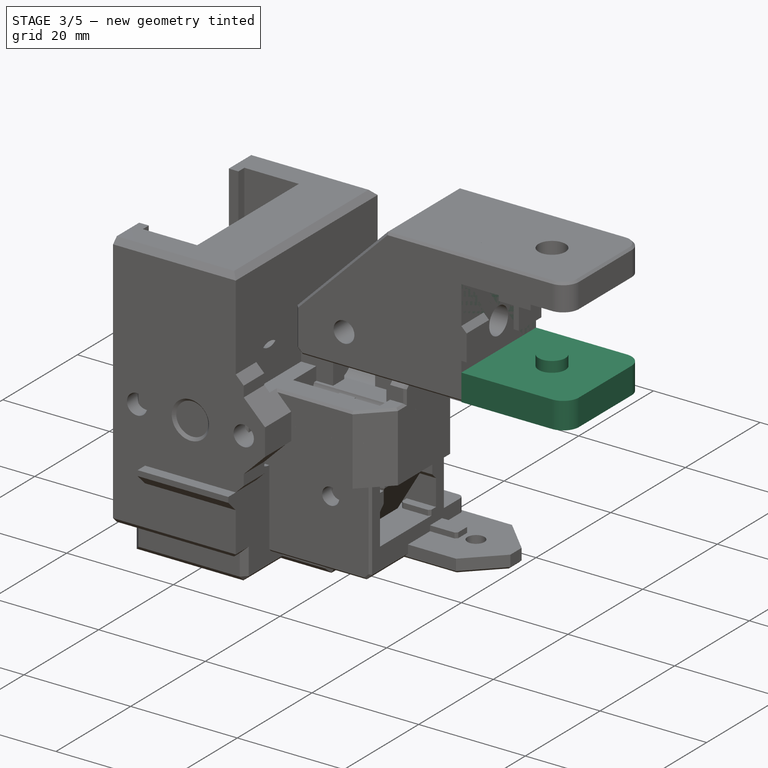
[diagram: stage 3 of 5 — iso view after this stage's code; geometry added in this stage tinted green]
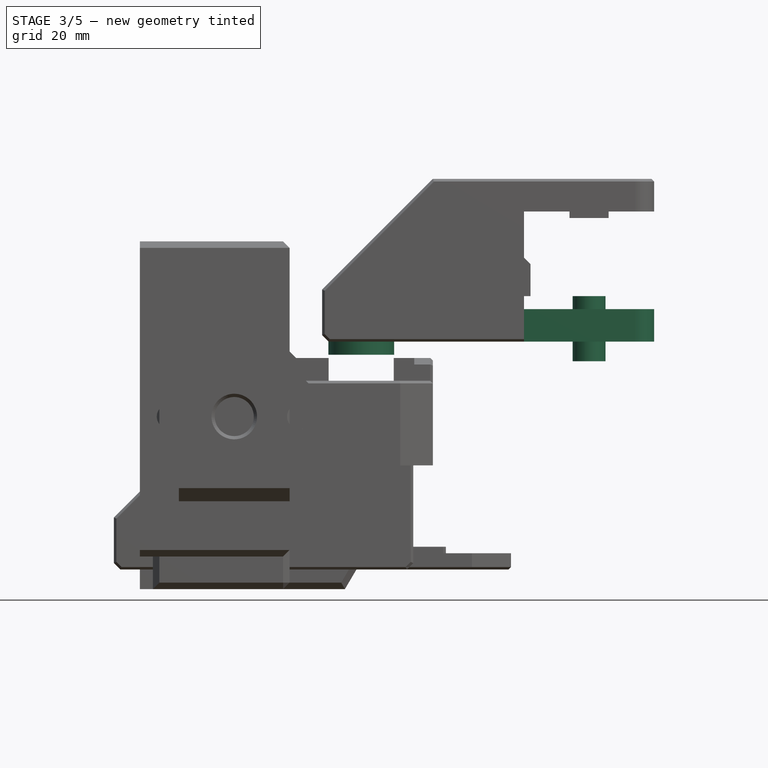
[diagram: stage 3 of 5 — front view after this stage's code; geometry added in this stage tinted green]
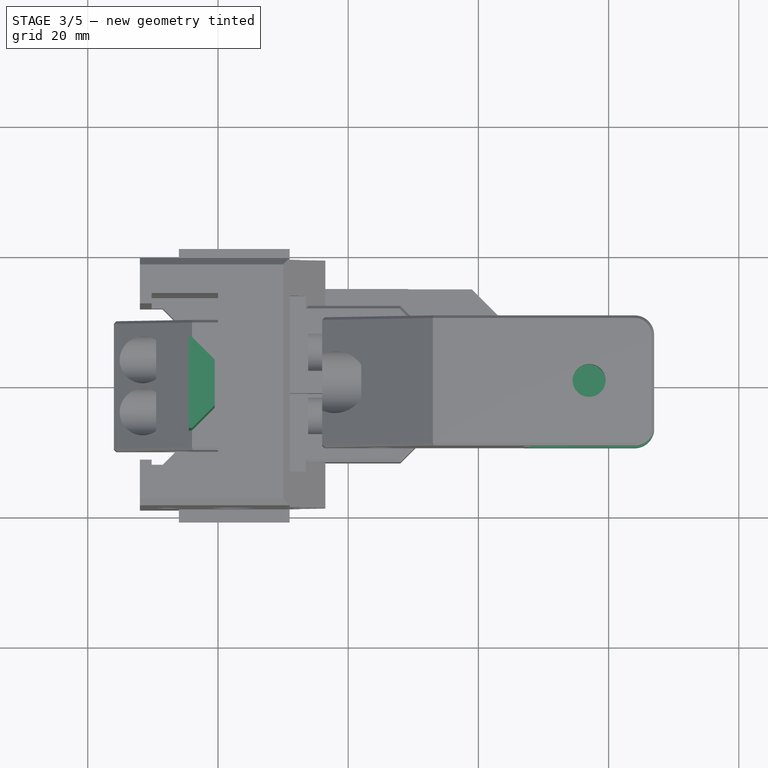
[diagram: stage 3 of 5 — top view after this stage's code; geometry added in this stage tinted green]
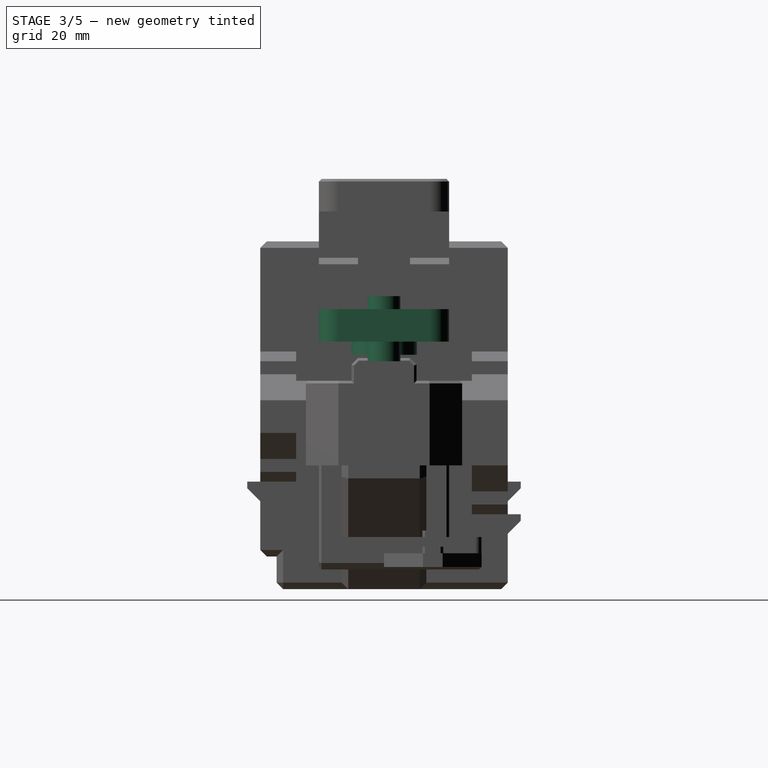
[diagram: stage 3 of 5 — right view after this stage's code; geometry added in this stage tinted green]
FEATURE [Part::Feature] Cut028006004005001  label="block-base001"
  shape: bbox 28.5 x 37.5 x 48.4 mm, 58 faces (baked)
FEATURE [Part::Feature] Cut028006004005002  label="block-base002"
  shape: bbox 28.5 x 37.5 x 48.4 mm, 58 faces (baked)
FEATURE [Part::Cylinder] Cylinder005
  Angle = 360
  AttacherType = Attacher::AttachEngine3D
  Height = 5
  Radius = 5.05
FEATURE [Part::Cylinder] Cylinder006
  Angle = 360
  AttacherType = Attacher::AttachEngine3D
  Height = 2
  Placement = pos=(0,0,3) rot=(0,0,1;0rad)
  Radius = 2.9
FEATURE [Part::Box] Box024  label="Cube024"
  AttacherType = Attacher::AttachEngine3D
  Height = 25
  Length = 31
  Placement = pos=(16,-10,35) rot=(0,0,1;0rad)
  Width = 20
FEATURE [Part::Box] Box025  label="Cube025"
  AttacherType = Attacher::AttachEngine3D
  Height = 5
  Length = 20
  Placement = pos=(47,-10,35) rot=(0,0,1;0rad)
  Width = 20
FEATURE [Part::Cylinder] Cylinder018
  Angle = 360
  AttacherType = Attacher::AttachEngine3D
  Height = 37
  Placement = pos=(14,0,45) rot=(0,1,0;1.5708rad)
  Radius = 2.525
FEATURE [Part::Cylinder] Cylinder019
  Angle = 360
  AttacherType = Attacher::AttachEngine3D
  Height = 8
  Placement = pos=(14,0,45) rot=(0,1,0;1.5708rad)
  Radius = 4.75
FEATURE [Part::Fillet] Fillet001
  Base = -> Box025
  Edges = 2 edges r=3: [Edge5,Edge7]
FEATURE [Part::Cylinder] Cylinder020
  Angle = 360
  AttacherType = Attacher::AttachEngine3D
  Height = 10
  Placement = pos=(57,0,32) rot=(0,0,1;0rad)
  Radius = 2.525
FEATURE [Part::Cylinder] Cylinder021
  Angle = 360
  AttacherType = Attacher::AttachEngine3D
  Height = 10
  Placement = pos=(24,-4,41) rot=(1,0,0;1.5708rad)
  Radius = 1.95
FEATURE [Part::Cylinder] Cylinder022
  Angle = 360
  AttacherType = Attacher::AttachEngine3D
  Height = 10
  Placement = pos=(24,14,41) rot=(1,0,0;1.5708rad)
  Radius = 1.95
FEATURE [Part::MultiFuse] Fusion004031
  Placement = pos=(1,0,0) rot=(0,0,1;0rad)
  Shapes = -> [Cylinder021,Cylinder022]
FEATURE [Part::MultiFuse] Fusion004035
  Shapes = -> [Cylinder019,Cylinder018]
FEATURE [Part::Feature] Fusion004025013  label="slider-slot002"
  Placement = pos=(24,4e-15,19.5) rot=(0,0,-1;1.5708rad)
  shape: bbox 12.3 x 16.2 x 12.1 mm, 8 faces (baked)
FEATURE [Part::Feature] Chamfer004013007011015006009007001005001  label="extend-arm-base001"
  shape: bbox 22 x 24 x 8 mm, 13 faces (baked)
FEATURE [Part::MultiFuse] Fusion004025014
  Shapes = -> [Fusion004025013,Fusion001]
FEATURE [Part::Cut] Cut028006004005011004003001002
  Base = -> Chamfer004013007011015006009007001005001
  Tool = -> Fusion004025014
FEATURE [Part::MultiFuse] Fusion004025015  label="x-slider-16mm"
  Shapes = -> [Cut028006004005011004003001002,Cut028006004005011004002,Cut028006004005002]
FEATURE [Part::Feature] Chamfer004013007011015006009007001005002  label="extend-arm-base002"
  shape: bbox 22 x 24 x 8 mm, 13 faces (baked)
FEATURE [Part::Feature] Fusion004005001  label="slider-slot003"
  Placement = pos=(22,-2,19.5) rot=(0,0,1;3.14159rad)
  shape: bbox 16.2 x 12.3 x 12.1 mm, 8 faces (baked)
FEATURE [Part::MultiFuse] Fusion004025016
  Shapes = -> [Fusion004005,Fusion004005001]
FEATURE [Part::Cut] Cut028006004005011004003001003
  Base = -> Chamfer004013007011015006009007001005002
  Tool = -> Fusion004025016
FEATURE [Part::MultiFuse] Fusion004025017  label="y-slider-16mm"
  Shapes = -> [Cut028006004005011004003001003,Cut028006004005011004001,Cut028006004005001]
FEATURE [Part::Chamfer] Chamfer004013007011015006009007001005003
  Base = -> Box033
  Edges = 1 edges r=3: [Edge6]
FEATURE [Part::Feature] Chamfer004013007011015006009007001005003001
  shape: bbox 5.5 x 3 x 8 mm, 7 faces (baked)
FEATURE [Part::MultiFuse] Fusion004025018  label="y-slider-16mm-f1"
  Shapes = -> [Fusion004025017,Chamfer004013007011015006009007001005003]
FEATURE [Part::MultiFuse] Fusion004025019  label="x-slider-16mm-f1"
  Shapes = -> [Fusion004025015,Chamfer004013007011015006009007001005003001]
FEATURE [Part::Box] Box034  label="Cube034"
  AttacherType = Attacher::AttachEngine3D
  Height = 4
  Length = 10
  Placement = pos=(17,-12,23.5) rot=(0,0,1;0rad)
  Width = 3.85
FEATURE [Part::Box] Box035  label="Cube035"
  AttacherType = Attacher::AttachEngine3D
  Height = 4
  Length = 10
  Placement = pos=(17,8.15,23.5) rot=(0,0,1;0rad)
  Width = 3.85
FEATURE [Part::Box] Box036  label="Cube036"
  AttacherType = Attacher::AttachEngine3D
  Height = 4
  Length = 10
  Placement = pos=(30.15,5,23.5) rot=(0,0,-1;1.5708rad)
  Width = 2.85
FEATURE [Part::Cylinder] Cylinder023
  Angle = 360
  AttacherType = Attacher::AttachEngine3D
  Height = 28.3
  Placement = pos=(2e-16,0,17) rot=(0,1,0;1.5708rad)
  Radius = 1.35
FEATURE [Part::Cylinder] Cylinder024
  Angle = 360
  AttacherType = Attacher::AttachEngine3D
  Height = 3.3
  Placement = pos=(2e-16,0,17) rot=(0,1,0;1.5708rad)
  Radius = 3.2
FEATURE [Part::MultiFuse] Fusion004025023  label="m3rf"
  Shapes = -> [Cylinder023,Cylinder024]
FEATURE [Part::Chamfer] Chamfer004013007011015006009007001005003015
  Base = -> Box024
  Edges = 1 edges r=17: [Edge2]
FEATURE [Part::Chamfer] Chamfer004013007011015006009007001005003016
  Base = -> Chamfer004013007011015006009007001005003015
  Edges = 1 edges r=1: [Edge2]
FEATURE [Part::Cut] Cut028006004005011004003001010002003
  Base = -> Chamfer004013007011015006009007001005003016
  Tool = -> Fusion004035
FEATURE [Part::Chamfer] Chamfer004013007011015006009007001005003018
  Base = -> Cut028006004005011004003001010002003
  Edges = 10 edges r=0.4: [Edge1,Edge6,Edge8,Edge9,Edge10,Edge11,Edge14,Edge21,Edge22,Edge23]
FEATURE [Part::Cut] Cut028006004005011004003001010002004
  Base = -> Chamfer004013007011015006009007001005003018
  Tool = -> Fusion004031
FEATURE [Part::Cut] Cut028006004005011004003001010002007  label="magnet-slot"
  Base = -> Cylinder005
  Placement = pos=(22,0,33) rot=(0,0,1;0rad)
  Tool = -> Cylinder006
FEATURE [Part::Box] Box041  label="Cube041"
  AttacherType = Attacher::AttachEngine3D
  Height = 20
  Length = 4
  Placement = pos=(-4.5,-7,0) rot=(0,0,1;0rad)
  Width = 14
FEATURE [Part::Box] Box042  label="Cube042"
  AttacherType = Attacher::AttachEngine3D
  Height = 5
  Length = 10
  Placement = pos=(-4.5,-5,0) rot=(0,0,1;0rad)
  Width = 10
FEATURE [Part::Chamfer] Chamfer004013007011015006009007001005003019
  Base = -> Box041
  Edges = 2 edges r=3.5: [Edge5,Edge7]
FEATURE [Part::MultiFuse] Fusion004025023011  label="block-remover-btm"
  Shapes = -> [Chamfer004013007011015006009007001005003019,Box042]
FEATURE [Part::Box] Box043  label="Cube043"
  AttacherType = Attacher::AttachEngine3D
  Height = 43
  Length = 4
  Placement = pos=(-4.5,-7,0) rot=(0,0,1;0rad)
  Width = 14
FEATURE [Part::Box] Box044  label="Cube044"
  AttacherType = Attacher::AttachEngine3D
  Height = 5
  Length = 10
  Placement = pos=(-4.5,-5,0) rot=(0,0,1;0rad)
  Width = 10
FEATURE [Part::Chamfer] Chamfer004013007011015006009007001005003020
  Base = -> Box043
  Edges = 2 edges r=3.5: [Edge5,Edge7]
FEATURE [Part::MultiFuse] Fusion004025023012  label="block-remover-btm-long"
  Shapes = -> [Box044,Chamfer004013007011015006009007001005003020]
FEATURE [Part::Chamfer] Chamfer004013007011015006009007001005003021
  Base = -> Box036
  Edges = 2 edges r=1: [Edge2,Edge6]
FEATURE [Part::Chamfer] Chamfer004013007011015006009007001005003022
  Base = -> Chamfer004013007011015006009007001005003021
  Edges = 5 edges r=0.4: [Edge3,Edge10,Edge14,Edge15,Edge16]
FEATURE [Part::Cut] Cut028006004005011004003001010002009
  Base = -> Fusion004025019
  Tool = -> Fusion004025023
FEATURE [Part::Chamfer] Chamfer004013007011015006009007001005003023
  Base = -> Cut028006004005011004003001010002009
  Edges = 1 edges r=0.4: [Edge238]
FEATURE [Part::MultiFuse] Fusion004025023013  label="x-slider-r1-f3"
  Shapes = -> [Chamfer004013007011015006009007001005003022,Chamfer004013007011015006009007001005003023]
FEATURE [Part::MultiFuse] Fusion004025023014
  Shapes = -> [Box034,Box035]
FEATURE [Part::Chamfer] Chamfer004013007011015006009007001005003024
  Base = -> Fusion004025023014
  Edges = 4 edges r=1: [Edge2,Edge6,Edge14,Edge18]
FEATURE [Part::Chamfer] Chamfer004013007011015006009007001005003025
  Base = -> Chamfer004013007011015006009007001005003024
  Edges = 10 edges r=0.4: [Edge1,Edge5,Edge7,Edge8,Edge9,Edge21,Edge28,Edge32,Edge33,Edge34]
FEATURE [Part::Cut] Cut028006004005011004003001010002010
  Base = -> Fusion004025018
  Tool = -> Fusion004025023001
FEATURE [Part::Chamfer] Chamfer004013007011015006009007001005003026
  Base = -> Cut028006004005011004003001010002010
  Edges = 1 edges r=0.4: [Edge238]
FEATURE [Part::MultiFuse] Fusion004025023015  label="y-slider-r1-f3"
  Shapes = -> [Chamfer004013007011015006009007001005003025,Chamfer004013007011015006009007001005003026]
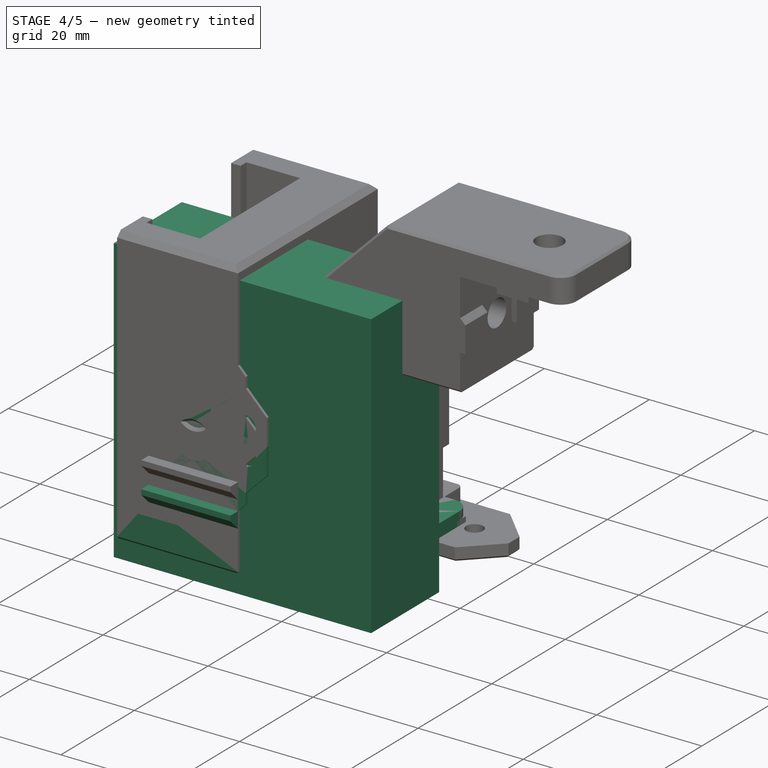
[diagram: stage 4 of 5 — iso view after this stage's code; geometry added in this stage tinted green]
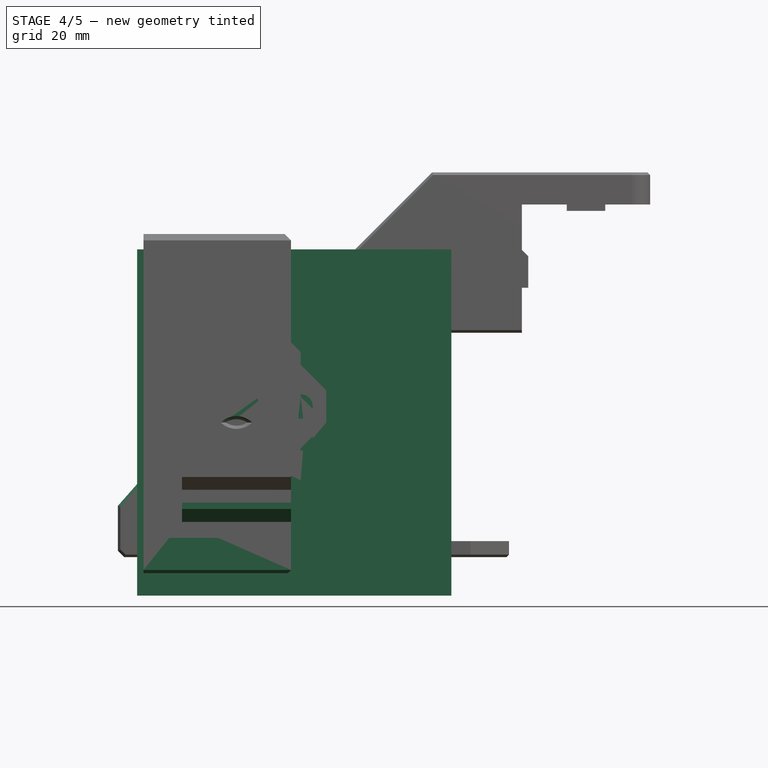
[diagram: stage 4 of 5 — front view after this stage's code; geometry added in this stage tinted green]
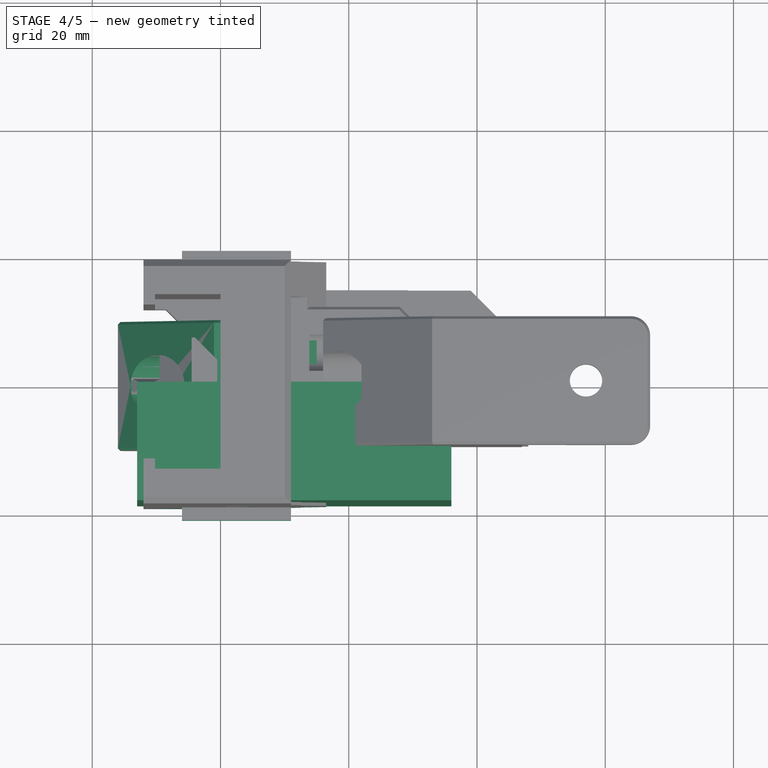
[diagram: stage 4 of 5 — top view after this stage's code; geometry added in this stage tinted green]
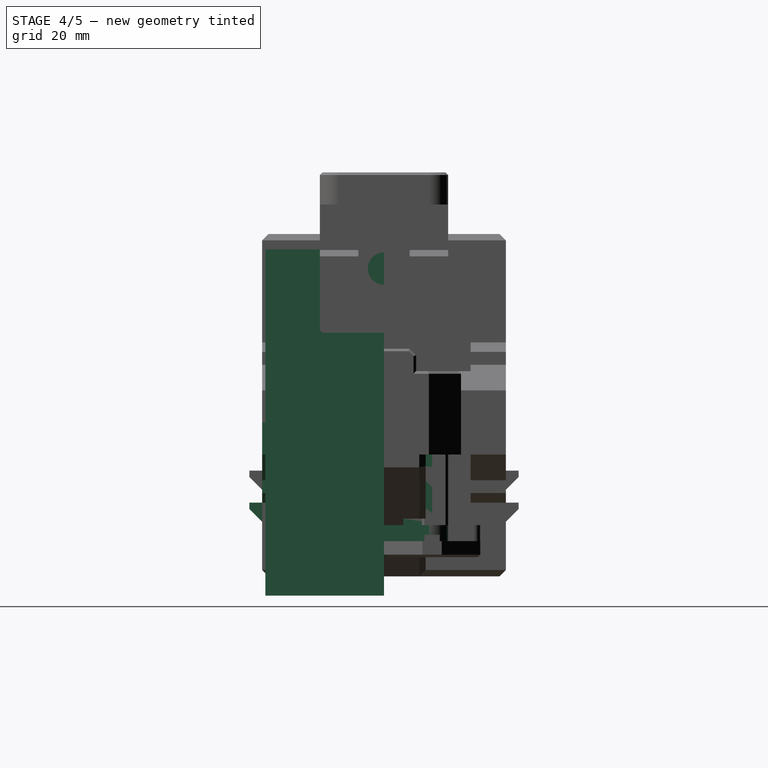
[diagram: stage 4 of 5 — right view after this stage's code; geometry added in this stage tinted green]
FEATURE [Part::Box] Box017  label="Cube017"
  AttacherType = Attacher::AttachEngine3D
  Height = 25
  Length = 31
  Placement = pos=(16,-10,35) rot=(0,0,1;0rad)
  Width = 20
FEATURE [Part::Box] Box018  label="Cube018"
  AttacherType = Attacher::AttachEngine3D
  Height = 5
  Length = 20
  Placement = pos=(47,-10,35) rot=(0,0,1;0rad)
  Width = 20
FEATURE [Part::Box] Box019  label="Cube019"
  AttacherType = Attacher::AttachEngine3D
  Height = 5.9
  Length = 2
  Placement = pos=(46,-10,47) rot=(0,0,1;0rad)
  Width = 6
FEATURE [Part::Cylinder] Cylinder007
  Angle = 360
  AttacherType = Attacher::AttachEngine3D
  Height = 37
  Placement = pos=(14,0,50) rot=(0,1,0;1.5708rad)
  Radius = 2.525
FEATURE [Part::Chamfer] Chamfer004013007011015006005
  Base = -> Box017
  Edges = 1 edges: [Edge2 r1=17 r2=15]
FEATURE [Part::Box] Box020  label="Cube020"
  AttacherType = Attacher::AttachEngine3D
  Height = 5.9
  Length = 2
  Placement = pos=(46,4,47) rot=(0,0,1;0rad)
  Width = 6
FEATURE [Part::Cylinder] Cylinder008
  Angle = 360
  AttacherType = Attacher::AttachEngine3D
  Height = 13
  Placement = pos=(14,0,50) rot=(0,1,0;1.5708rad)
  Radius = 4.75
FEATURE [Part::Box] Box021  label="Cube021"
  AttacherType = Attacher::AttachEngine3D
  Height = 1
  Length = 6
  Placement = pos=(54,-10,40) rot=(0,0,1;0rad)
  Width = 7
FEATURE [Part::MultiFuse] Fusion004019
  Shapes = -> [Cylinder008,Cylinder007]
FEATURE [Part::Fillet] Fillet
  Base = -> Box018
  Edges = 2 edges r=3: [Edge5,Edge7]
FEATURE [Part::Cylinder] Cylinder009
  Angle = 360
  AttacherType = Attacher::AttachEngine3D
  Height = 10
  Placement = pos=(57,0,32) rot=(0,0,1;0rad)
  Radius = 2.525
FEATURE [Part::Box] Box022  label="Cube022"
  AttacherType = Attacher::AttachEngine3D
  Height = 1
  Length = 6
  Placement = pos=(54,3,40) rot=(0,0,1;0rad)
  Width = 7
FEATURE [Part::Box] Box023  label="Cube023"
  AttacherType = Attacher::AttachEngine3D
  Height = 10
  Length = 12
  Placement = pos=(7,-4,28) rot=(0,0,1;0rad)
  Width = 8
FEATURE [Part::Cylinder] Cylinder011
  Angle = 360
  AttacherType = Attacher::AttachEngine3D
  Height = 10
  Placement = pos=(24,-4,41) rot=(1,0,0;1.5708rad)
  Radius = 1.95
FEATURE [Part::Cylinder] Cylinder012
  Angle = 360
  AttacherType = Attacher::AttachEngine3D
  Height = 10
  Placement = pos=(24,14,41) rot=(1,0,0;1.5708rad)
  Radius = 1.95
FEATURE [Part::MultiFuse] Fusion004023
  Shapes = -> [Cylinder011,Cylinder012]
FEATURE [Part::MultiFuse] Fusion004018
  Shapes = -> [Box020,Box019]
FEATURE [Part::Chamfer] Chamfer004013007011015006006
  Base = -> Fusion004018
  Edges = 2 edges r=1: [Edge8,Edge20]
FEATURE [Part::MultiFuse] Fusion004020
  Shapes = -> [Box022,Fillet,Box021]
FEATURE [Part::Cut] Cut028006004005004
  Base = -> Fusion004020
  Tool = -> Cylinder009
FEATURE [Part::MultiFuse] Fusion004021
  Shapes = -> [Chamfer004013007011015006005,Chamfer004013007011015006006,Cut028006004005004]
FEATURE [Part::Box] Box026  label="Cube026"
  AttacherType = Attacher::AttachEngine3D
  Height = 5.9
  Length = 2
  Placement = pos=(46,-10,47) rot=(0,0,1;0rad)
  Width = 6
FEATURE [Part::Box] Box027  label="Cube027"
  AttacherType = Attacher::AttachEngine3D
  Height = 5.9
  Length = 2
  Placement = pos=(46,4,47) rot=(0,0,1;0rad)
  Width = 6
FEATURE [Part::MultiFuse] Fusion004032
  Placement = pos=(0,0,-5.1) rot=(0,0,1;0rad)
  Shapes = -> [Box027,Box026]
FEATURE [Part::Box] Box028  label="Cube028"
  AttacherType = Attacher::AttachEngine3D
  Height = 1
  Length = 6
  Placement = pos=(54,-10,40) rot=(0,0,1;0rad)
  Width = 7
FEATURE [Part::Box] Box029  label="Cube029"
  AttacherType = Attacher::AttachEngine3D
  Height = 1
  Length = 6
  Placement = pos=(54,3,40) rot=(0,0,1;0rad)
  Width = 7
FEATURE [Part::Box] Box030  label="Cube030"
  AttacherType = Attacher::AttachEngine3D
  Height = 10
  Length = 12
  Placement = pos=(7,-2,28) rot=(0,0,1;0rad)
  Width = 4
FEATURE [Part::Cut] Cut028006004005016
  Base = -> Fillet001
  Placement = pos=(0,0,6) rot=(0,0,1;0rad)
  Tool = -> Cylinder020
FEATURE [Part::MultiFuse] Fusion004034
  Placement = pos=(0,0,14) rot=(0,0,1;0rad)
  Shapes = -> [Cut028006004005016,Box028,Box029]
FEATURE [Part::Chamfer] Chamfer004013007011015006009004
  Base = -> Fusion004032
  Edges = 2 edges r=1: [Edge6,Edge18]
  Placement = pos=(0,0,0.1) rot=(0,0,1;0rad)
FEATURE [Part::Feature] Fusion004025023001  label="m3rf001"
  shape: bbox 28.3 x 6.4 x 6.4 mm, 6 faces (baked)
FEATURE [Part::Feature] Fusion004025023004  label="slider-slot004"
  Placement = pos=(24,4e-15,19.5) rot=(0,0,-1;1.5708rad)
  shape: bbox 12.3 x 16.2 x 12.1 mm, 8 faces (baked)
FEATURE [Part::Cylinder] Cylinder025
  Angle = 360
  AttacherType = Attacher::AttachEngine3D
  Height = 3.3
  Placement = pos=(2e-16,0,17) rot=(0,1,0;1.5708rad)
  Radius = 3.2
FEATURE [Part::Box] Box037  label="Cube037"
  AttacherType = Attacher::AttachEngine3D
  Height = 3
  Length = 10
  Placement = pos=(30.15,5,23.5) rot=(0,0,-1;1.5708rad)
  Width = 2.85
FEATURE [Part::Cylinder] Cylinder026
  Angle = 360
  AttacherType = Attacher::AttachEngine3D
  Height = 28.3
  Placement = pos=(2e-16,0,17) rot=(0,1,0;1.5708rad)
  Radius = 1.35
FEATURE [Part::MultiFuse] Fusion004025023003  label="m3rf002"
  Shapes = -> [Cylinder026,Cylinder025]
FEATURE [Part::Feature] Cut028006004005011004003001006  label="supporter-rf003"
  shape: bbox 20 x 13 x 19 mm, 14 faces (baked)
FEATURE [Part::Chamfer] Chamfer004013007011015006009007001005003009
  Base = -> Box037
  Edges = 2 edges r=1: [Edge2,Edge6]
FEATURE [Part::Chamfer] Chamfer004013007011015006009007001005003008
  Base = -> Chamfer004013007011015006009007001005003009
  Edges = 5 edges r=0.4: [Edge3,Edge10,Edge14,Edge15,Edge16]
FEATURE [Part::Feature] Fusion004025023008  label="slider-slot005"
  Placement = pos=(20,4e-15,19.5) rot=(0,0,-1;1.5708rad)
  shape: bbox 12.3 x 16.2 x 12.1 mm, 8 faces (baked)
FEATURE [Part::MultiFuse] Fusion004025023002
  Shapes = -> [Fusion004025023004,Fusion004025023008]
FEATURE [Part::Feature] Chamfer004013007011015006009007001005003011
  shape: bbox 5.5 x 3 x 8 mm, 7 faces (baked)
FEATURE [Part::Feature] Cut028006004005011004003001009  label="block-base003"
  shape: bbox 28.5 x 37.5 x 48.4 mm, 58 faces (baked)
FEATURE [Part::Feature] Chamfer004013007011015006009007001005003012  label="extend-arm-base003"
  shape: bbox 22 x 24 x 8 mm, 13 faces (baked)
FEATURE [Part::Cut] Cut028006004005011004003001008
  Base = -> Chamfer004013007011015006009007001005003012
  Tool = -> Fusion004025023002
FEATURE [Part::MultiFuse] Fusion004025023006  label="x-slider-16mm001"
  Shapes = -> [Cut028006004005011004003001008,Cut028006004005011004003001006,Cut028006004005011004003001009]
FEATURE [Part::MultiFuse] Fusion004025023007  label="x-slider-16mm-f002"
  Shapes = -> [Fusion004025023006,Chamfer004013007011015006009007001005003011]
FEATURE [Part::MultiFuse] Fusion004025023005
  Shapes = -> [Chamfer004013007011015006009007001005003008,Fusion004025023007]
FEATURE [Part::Box] Box038  label="Cube038"
  AttacherType = Attacher::AttachEngine3D
  Height = 54
  Length = 49
  Placement = pos=(-13,-18.5,-6) rot=(0,0,1;0rad)
  Width = 18.5
FEATURE [Part::Feature] Cut028006004005011004003001010001
  shape: bbox 45 x 21 x 48.4 mm, 87 faces (baked)
FEATURE [Part::Mirroring] Part__Mirroring  label="Cut028006004005011004003001010001 (Mirror #1)"
  Base = (0,0,0)
  Normal = (0,1,0)
  Source = -> Cut028006004005011004003001010001
FEATURE [Part::Feature] Cut028006004005005001
  Placement = pos=(22,0,33) rot=(0,0,1;0rad)
  shape: bbox 13.1 x 13.1 x 5 mm, 5 faces (baked)
FEATURE [Part::Cut] Cut028006004005011004003001010003
  Base = -> Fusion004021
  Tool = -> Fusion004019
FEATURE [Part::Chamfer] Chamfer004013007011015006009007001005003013
  Base = -> Cut028006004005011004003001010003
  Edges = 1 edges r=1: [Edge3]
FEATURE [Part::Cut] Cut028006004005011004003001010004
  Base = -> Chamfer004013007011015006009007001005003013
  Tool = -> Box023
FEATURE [Part::Cut] Cut028006004005011004003001010005
  Base = -> Cut028006004005011004003001010004
  Tool = -> Fusion004023
FEATURE [Part::Chamfer] Chamfer004013007011015006009007001005003014
  Base = -> Cut028006004005011004003001010005
  Edges = 15 edges r=0.4: [Edge1,Edge3,Edge9,Edge10,Edge11,Edge12,Edge20,Edge23,Edge24,Edge25,Edge47,Edge65,Edge73,Edge74,Edge75]
FEATURE [Part::Feature] Cut028006004005011004003001010002001  label="magnet-slot001"
  Placement = pos=(22,0,33) rot=(0,0,1;0rad)
  shape: bbox 10.1 x 10.1 x 5 mm, 5 faces (baked)
FEATURE [Part::Cut] Cut028006004005011004003001010002002  label="bed-mount-bottom"
  Base = -> Chamfer004013007011015006009007001005003014
  Placement = pos=(-32,0,-35) rot=(0,0,1;0rad)
  Tool = -> Cut028006004005011004003001010002001
FEATURE [Part::Chamfer] Chamfer004013007011015006009007001005003017
  Base = -> Fusion004034
  Edges = 5 edges r=0.4: [Edge1,Edge5,Edge6,Edge8,Edge9]
FEATURE [Part::MultiFuse] Fusion004025023010
  Shapes = -> [Chamfer004013007011015006009004,Chamfer004013007011015006009007001005003017,Cut028006004005011004003001010002004]
FEATURE [Part::Cut] Cut028006004005011004003001010002005
  Base = -> Fusion004025023010
  Tool = -> Box030
FEATURE [Part::Cut] Cut028006004005011004003001010002008  label="bed-mount-top-2020-10x6slot"
  Base = -> Cut028006004005011004003001010002005
  Tool = -> Cut028006004005011004003001010002007
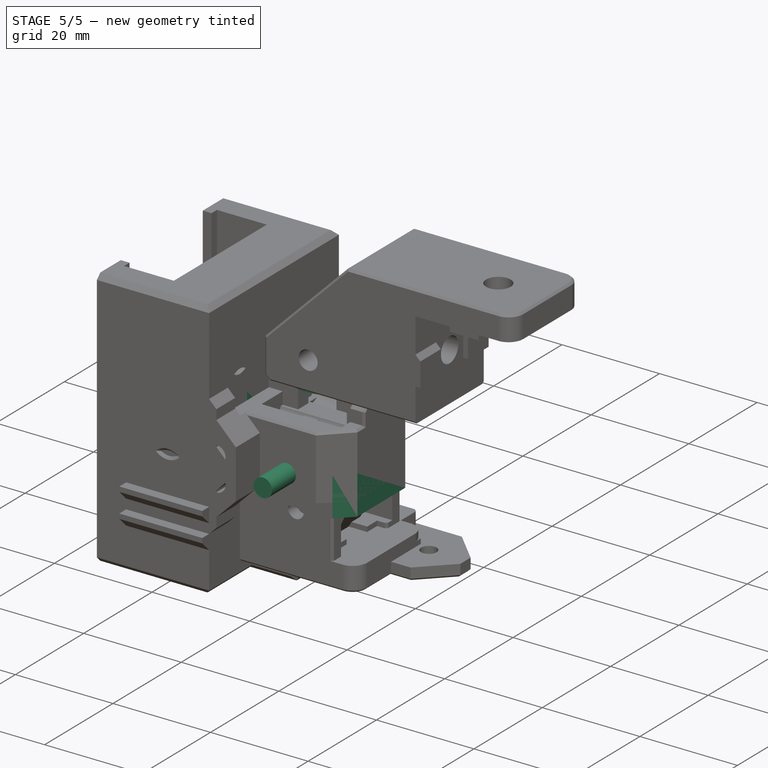
[diagram: stage 5 of 5 — iso view after this stage's code; geometry added in this stage tinted green]
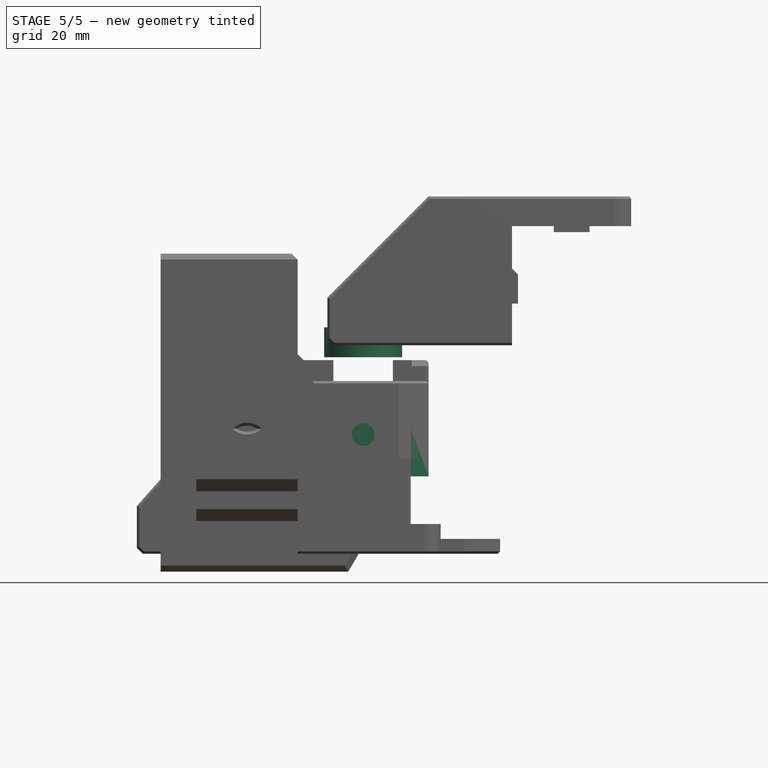
[diagram: stage 5 of 5 — front view after this stage's code; geometry added in this stage tinted green]
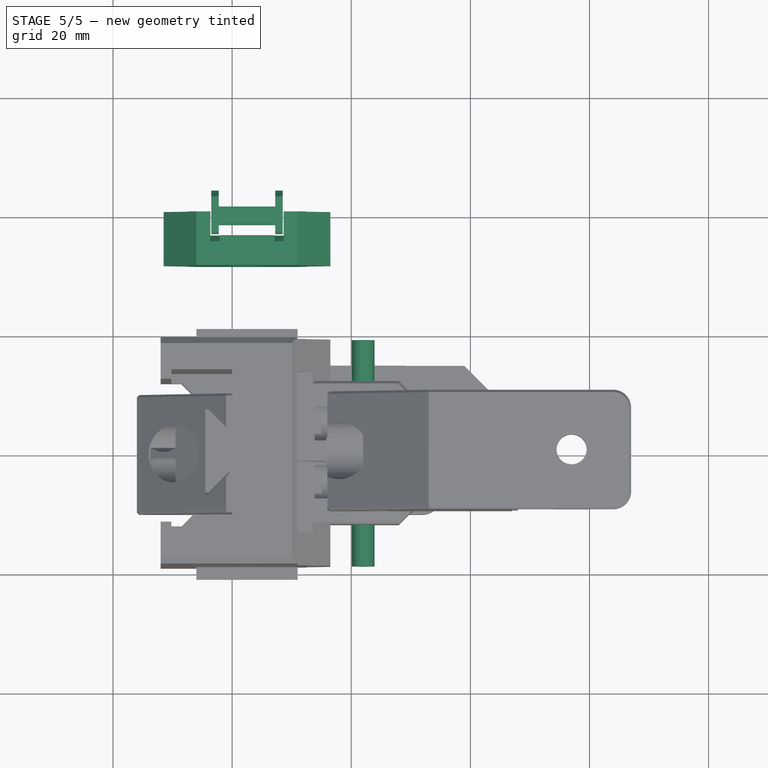
[diagram: stage 5 of 5 — top view after this stage's code; geometry added in this stage tinted green]
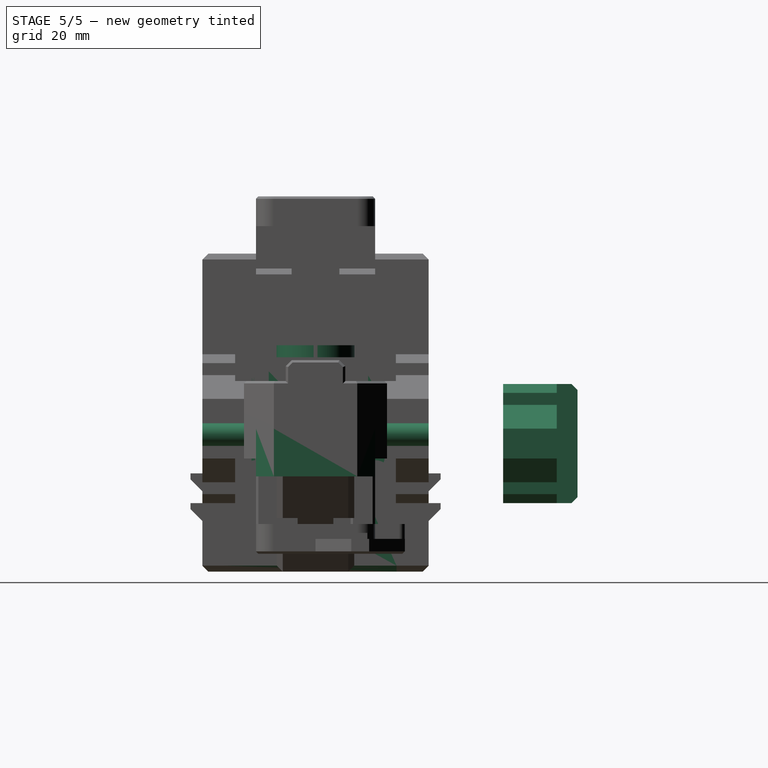
[diagram: stage 5 of 5 — right view after this stage's code; geometry added in this stage tinted green]
FEATURE [Part::Box] Box  label="Cube"
  AttacherType = Attacher::AttachEngine3D
  Height = 48.4
  Length = 11
  Placement = pos=(0,-16.5,-3) rot=(0,0,1;0rad)
  Width = 33
FEATURE [Part::Feature] Fusion001001  label="_MGN12-pref"
  Placement = pos=(-7.5,4e-15,38.61) rot=(0,0,-1;1.5708rad)
  shape: bbox 13 x 27 x 200 mm, 427 faces (baked)
FEATURE [Part::Cylinder] Cylinder
  Angle = 360
  AttacherType = Attacher::AttachEngine3D
  Height = 11
  Placement = pos=(-3.9e-15,0,17.35) rot=(0,1,0;1.5708rad)
  Radius = 1.6
FEATURE [Part::Cylinder] Cylinder001
  Angle = 360
  AttacherType = Attacher::AttachEngine3D
  Height = 4
  Placement = pos=(7,0,17.35) rot=(0,1,0;1.5708rad)
  Radius = 3
FEATURE [Part::Box] Box001  label="Cube001"
  AttacherType = Attacher::AttachEngine3D
  Height = 48.4
  Length = 11
  Placement = pos=(-10,-16.5,-3) rot=(0,0,1;0rad)
  Width = 2.9
FEATURE [Part::Box] Box002  label="Cube002"
  AttacherType = Attacher::AttachEngine3D
  Height = 48.4
  Length = 23
  Placement = pos=(-12,13.6,-3) rot=(0,0,1;0rad)
  Width = 5.4
FEATURE [Part::MultiFuse] Fusion
  Placement = pos=(0,10,-4.65) rot=(0,0,1;0rad)
  Shapes = -> [Cylinder001,Cylinder]
FEATURE [Part::Feature] Fusion001002  label="Fusion001"
  Placement = pos=(0,-10,-4.65) rot=(0,0,1;0rad)
  shape: bbox 11 x 6 x 6 mm, 6 faces (baked)
FEATURE [Part::Feature] Fusion001003  label="Fusion002"
  Placement = pos=(0,10,15.35) rot=(0,0,1;0rad)
  shape: bbox 11 x 6 x 6 mm, 6 faces (baked)
FEATURE [Part::Feature] Fusion001004  label="Fusion003"
  Placement = pos=(0,-10,15.35) rot=(0,0,1;0rad)
  shape: bbox 11 x 6 x 6 mm, 6 faces (baked)
FEATURE [Part::Box] Box003  label="Cube003"
  AttacherType = Attacher::AttachEngine3D
  Height = 48.4
  Length = 1.8
  Placement = pos=(-12,12,-3) rot=(0,0,1;0rad)
  Width = 2
FEATURE [Part::Box] Box004  label="Cube004"
  AttacherType = Attacher::AttachEngine3D
  Height = 7
  Length = 10
  Placement = pos=(6.5,13.5,15) rot=(0,0,1;0rad)
  Width = 5.5
FEATURE [Part::Cylinder] Cylinder002
  Angle = 360
  AttacherType = Attacher::AttachEngine3D
  Height = 5
  Placement = pos=(12,14,17.5) rot=(-1,0,0;1.5708rad)
  Radius = 1.9
FEATURE [Part::Cylinder] Cylinder003
  Angle = 360
  AttacherType = Attacher::AttachEngine3D
  Height = 5
  Placement = pos=(-8,14,17.5) rot=(-1,0,0;1.5708rad)
  Radius = 1.9
FEATURE [Part::Box] Box005  label="Cube005"
  AttacherType = Attacher::AttachEngine3D
  Height = 15
  Length = 5.5
  Placement = pos=(10,13.5,11) rot=(0,0,1;0rad)
  Width = 5.5
FEATURE [Part::Cylinder] Cylinder004
  Angle = 360
  AttacherType = Attacher::AttachEngine3D
  Height = 5
  Placement = pos=(2,22,17.5) rot=(-1,0,0;1.5708rad)
  Radius = 3.5
FEATURE [Part::Chamfer] Chamfer004013007003
  Base = -> Cylinder004
  Edges = 1 edges r=0.5: [Edge3]
  Placement = pos=(0,-3.5,0) rot=(0,0,1;0rad)
FEATURE [Part::MultiFuse] Fusion001006
  Placement = pos=(0.5,0,1) rot=(0,0,1;0rad)
  Shapes = -> [Chamfer004013007003,Cylinder002,Cylinder003]
FEATURE [Part::Box] Box006  label="Cube006"
  AttacherType = Attacher::AttachEngine3D
  Height = 3
  Length = 17
  Placement = pos=(-6,18,4.5) rot=(0,0,1;0rad)
  Width = 3
FEATURE [Part::Chamfer] Chamfer004013007006
  Base = -> Box006
  Edges = 1 edges r=2: [Edge11]
  Placement = pos=(0,0,1) rot=(0,0,1;0rad)
FEATURE [Part::Feature] Fusion003001  label="belt-holder"
  Placement = pos=(2.5,44,18.5) rot=(1,0,0;1.5708rad)
  shape: bbox 12 x 7 x 20 mm, 88 faces (baked)
FEATURE [Part::Feature] Cut002001  label="belt-clamp-nut"
  Placement = pos=(2.5,51.5,18.5) rot=(-1,0,0;1.5708rad)
  shape: bbox 9 x 5 x 20 mm, 11 faces (baked)
FEATURE [Part::Box] Box008  label="Cube008"
  AttacherType = Attacher::AttachEngine3D
  Height = 2.85
  Length = 11
  Placement = pos=(-10,3.5,-3) rot=(0,0,1;0rad)
  Width = 11
FEATURE [Part::Box] Box009  label="Cube009"
  AttacherType = Attacher::AttachEngine3D
  Height = 2.85
  Length = 11
  Placement = pos=(-10,-14.5,-3) rot=(0,0,1;0rad)
  Width = 11
FEATURE [Part::Chamfer] Chamfer
  Base = -> Box009
  Edges = 1 edges r=10: [Edge3]
FEATURE [Part::Chamfer] Chamfer004013007009
  Base = -> Box008
  Edges = 1 edges r=10: [Edge1]
FEATURE [Part::Box] Box010  label="Cube010"
  AttacherType = Attacher::AttachEngine3D
  Height = 2.85
  Length = 4
  Placement = pos=(-12,12,-3) rot=(0,0,1;0rad)
  Width = 2
FEATURE [Part::Box] Box011  label="Cube011"
  AttacherType = Attacher::AttachEngine3D
  Height = 8
  Length = 22
  Placement = pos=(11,-10,13) rot=(0,0,1;0rad)
  Width = 20
FEATURE [Part::Feature] Fusion001  label="slider-slot"
  Placement = pos=(20,4e-15,19.5) rot=(0,0,-1;1.5708rad)
  shape: bbox 12.3 x 16.2 x 12.1 mm, 8 faces (baked)
FEATURE [Part::Feature] Fusion004005  label="slider-slot001"
  Placement = pos=(22,2,19.5) rot=(0,0,1;3.14159rad)
  shape: bbox 16.2 x 12.3 x 12.1 mm, 8 faces (baked)
FEATURE [Part::Chamfer] Chamfer004013007011012
  Base = -> Box011
  Edges = 2 edges r=3: [Edge5,Edge7]
FEATURE [Part::Box] Box015  label="Cube015"
  AttacherType = Attacher::AttachEngine3D
  Height = 19
  Length = 20
  Placement = pos=(9.5,-6.5,-3) rot=(0,0,1;0rad)
  Width = 13
FEATURE [Part::MultiFuse] Fusion004010
  Shapes = -> [Fusion,Fusion001003,Fusion001002,Fusion001004]
FEATURE [Part::MultiFuse] Fusion004011
  Shapes = -> [Box002,Box,Box001,Box003,Chamfer004013007009,Chamfer,Box010]
FEATURE [Part::Chamfer] Chamfer004013007011015002
  Base = -> Box004
  Edges = 2 edges r=1: [Edge6,Edge8]
FEATURE [Part::Chamfer] Chamfer004013007011015003
  Base = -> Fusion004011
  Edges = 17 edges r=1: [Edge26,Edge27,Edge31,Edge33,Edge50,Edge57,Edge76,Edge77,Edge89,Edge90,Edge97,Edge100,Edge109,Edge115,Edge116,Edge123,Edge125]
FEATURE [Part::Chamfer] Chamfer004013007011015004
  Base = -> Box005
  Edges = 2 edges r=4: [Edge6,Edge8]
FEATURE [Part::Box] Box016  label="Cube016"
  AttacherType = Attacher::AttachEngine3D
  Height = 20
  Length = 2
  Placement = pos=(10.5,13.5,8.5) rot=(0,0,1;0rad)
  Width = 5.5
FEATURE [Part::Feature] Defeatured003
  shape: bbox 28 x 9 x 20 mm, 43 faces (baked)
FEATURE [Part::Chamfer] Chamfer004013007011015006002  label="belt-connector-rf"
  Base = -> Defeatured003
  Edges = 4 edges r=1.5: [Edge18,Edge41,Edge42,Edge56]
FEATURE [Part::Chamfer] Chamfer004013007011015006003
  Base = -> Box016
  Edges = 2 edges r=1.5: [Edge6,Edge8]
FEATURE [Part::MultiFuse] Fusion004015
  Shapes = -> [Chamfer004013007011015002,Chamfer004013007011015004,Chamfer004013007011015006003,Chamfer004013007006,Chamfer004013007011015003]
FEATURE [Part::Cut] Cut
  Base = -> Fusion004015
  Tool = -> Fusion001006
FEATURE [Part::Cut] Cut028006004005  label="block-base"
  Base = -> Cut
  Tool = -> Fusion004010
FEATURE [Part::Cylinder] Cylinder014
  Angle = 360
  AttacherType = Attacher::AttachEngine3D
  Height = 10
  Placement = pos=(22,-9,25) rot=(1,0,0;1.5708rad)
  Radius = 1.9
FEATURE [Part::Cylinder] Cylinder015
  Angle = 360
  AttacherType = Attacher::AttachEngine3D
  Height = 10
  Placement = pos=(22,19,25) rot=(1,0,0;1.5708rad)
  Radius = 1.9
FEATURE [Part::Cylinder] Cylinder016
  Angle = 360
  AttacherType = Attacher::AttachEngine3D
  Height = 5
  Radius = 6.55
FEATURE [Part::Cylinder] Cylinder017
  Angle = 360
  AttacherType = Attacher::AttachEngine3D
  Height = 2
  Placement = pos=(0,0,3) rot=(0,0,1;0rad)
  Radius = 2.65
FEATURE [Part::Cut] Cut028006004005015
  Base = -> Cylinder016
  Placement = pos=(22,0,33) rot=(0,0,1;0rad)
  Tool = -> Cylinder017
FEATURE [Part::MultiFuse] Fusion004025002
  Placement = pos=(0,0,-5) rot=(0,0,1;0rad)
  Shapes = -> [Cylinder015,Cylinder014]
FEATURE [Part::Cylinder] Cylinder010
  Angle = 360
  AttacherType = Attacher::AttachEngine3D
  Height = 14
  Placement = pos=(22,7,12) rot=(1,0,0;1.5708rad)
  Radius = 1.9
FEATURE [Part::Chamfer] Chamfer004013007011015006009007001002  label="supporter-base"
  Base = -> Box015
  Edges = 1 edges: [Edge8 r1=17 r2=10]
FEATURE [Part::Chamfer] Chamfer004013007011015006009007001003
  Base = -> Chamfer004013007011015006009007001002
  Edges = 6 edges r=1: [Edge1,Edge3,Edge5,Edge8,Edge9,Edge13]
FEATURE [Part::Cut] Cut028006004005011004  label="supporter-rf"
  Base = -> Chamfer004013007011015006009007001003
  Tool = -> Cylinder010
FEATURE [Part::Feature] Cut028006004005011004001  label="supporter-rf001"
  shape: bbox 20 x 13 x 19 mm, 14 faces (baked)
FEATURE [Part::Feature] Cut028006004005011004002  label="supporter-rf002"
  shape: bbox 20 x 13 x 19 mm, 14 faces (baked)
FEATURE [Part::Box] Box031  label="Cube031"
  AttacherType = Attacher::AttachEngine3D
  Height = 6.4
  Length = 9.5
  Placement = pos=(-2.25,37.7,15.3) rot=(0,0,1;0rad)
  Width = 8
FEATURE [Part::Cut] Cut028006004005011004003  label="belt-mounter-9mm"
  Base = -> Fusion003001
  Tool = -> Box031
FEATURE [Part::Refine] Cut028006004005011004003001  label="belt-mounter-9mm001"
  Source = -> Cut028006004005011004003
FEATURE [Part::Feature] Cut028006004005011004003001001  label="belt-mounter-9mm002"
  shape: bbox 12 x 7 x 20 mm, 80 faces (baked)
FEATURE [Part::Box] Box032  label="Cube032"
  AttacherType = Attacher::AttachEngine3D
  Height = 8
  Length = 22
  Placement = pos=(11,-12,16) rot=(0,0,1;0rad)
  Width = 24
FEATURE [Part::Chamfer] Chamfer004013007011015006009007001004
  Base = -> Box032
  Edges = 2 edges r=5: [Edge5,Edge7]
FEATURE [Part::Chamfer] Chamfer004013007011015006009007001005  label="extend-arm-base"
  Base = -> Chamfer004013007011015006009007001004
  Edges = 5 edges r=0.4: [Edge1,Edge5,Edge7,Edge8,Edge9]
FEATURE [Part::Cut] Cut028006004005011004003001007
  Base = -> Fusion004025023005
  Tool = -> Fusion004025023003
FEATURE [Part::Cut] Cut028006004005011004003001010
  Base = -> Cut028006004005011004003001007
  Tool = -> Box038
FEATURE [Part::MultiFuse] Fusion004025023009  label="x-slider-r1-f2-dual"
  Shapes = -> [Cut028006004005011004003001010,Part__Mirroring]
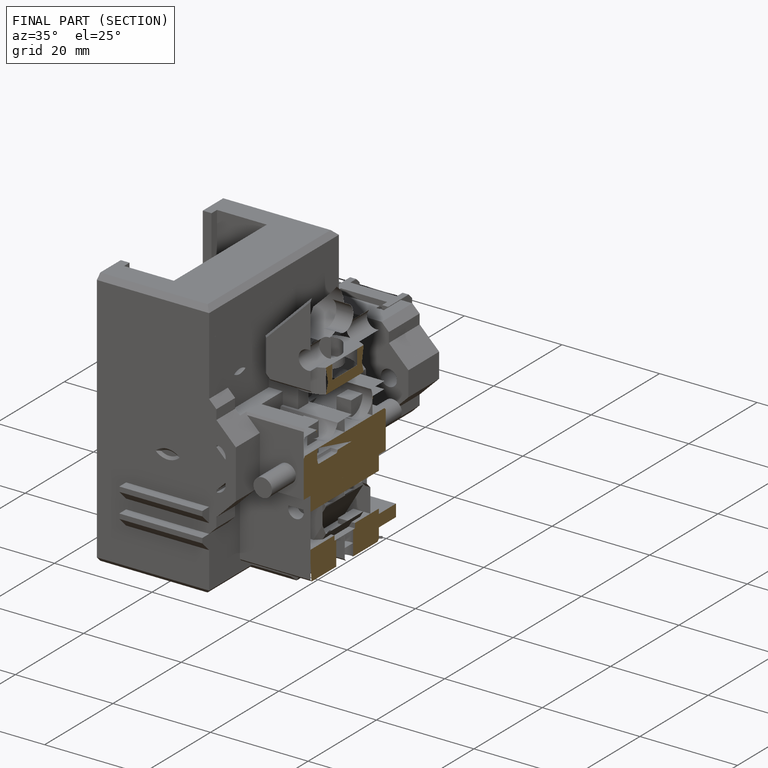
[diagram: finished part — half-section view (interior)]
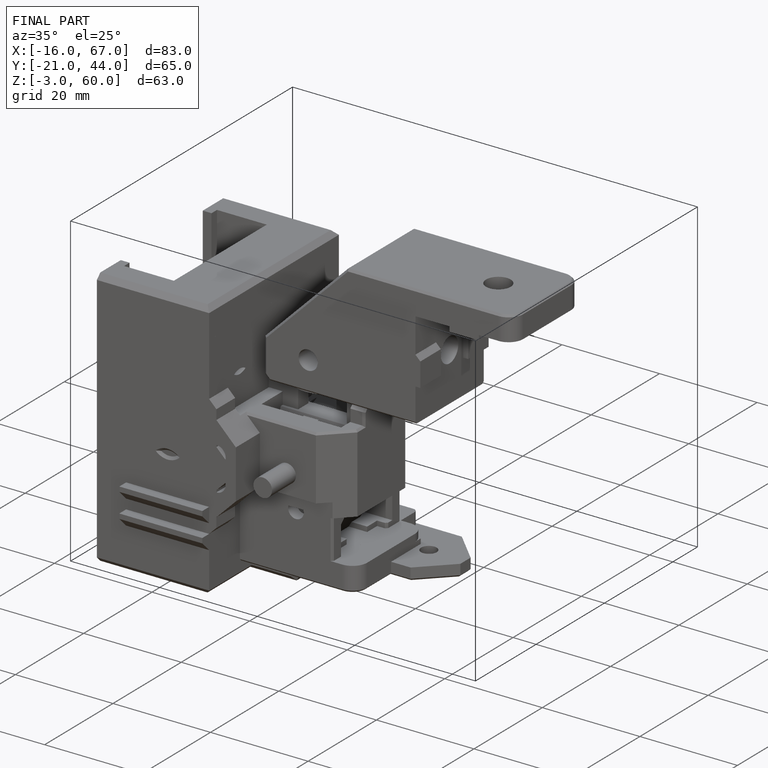
[diagram: finished part — iso view with bounding-box wireframe]
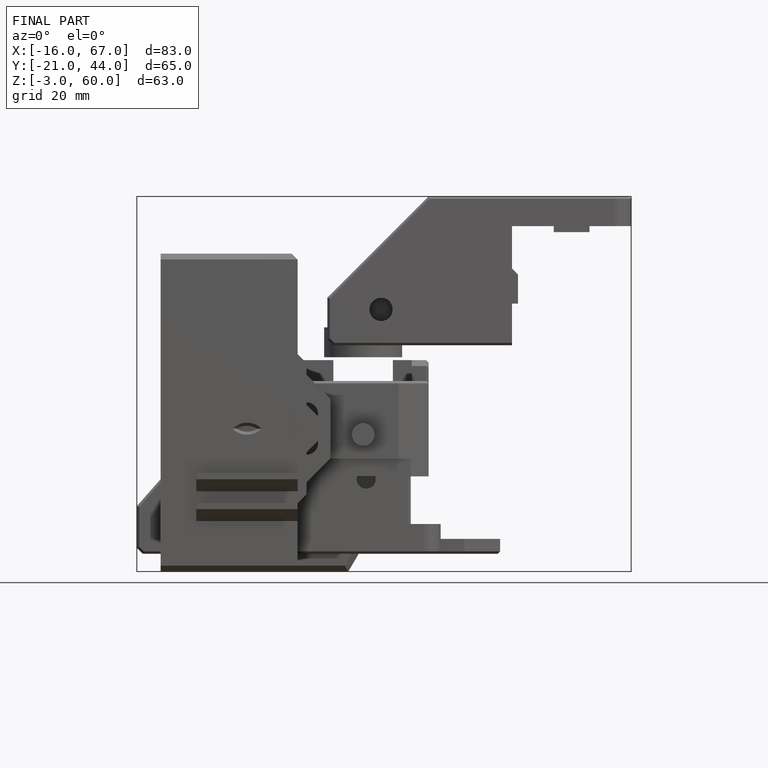
[diagram: finished part — front view with bounding-box wireframe]
